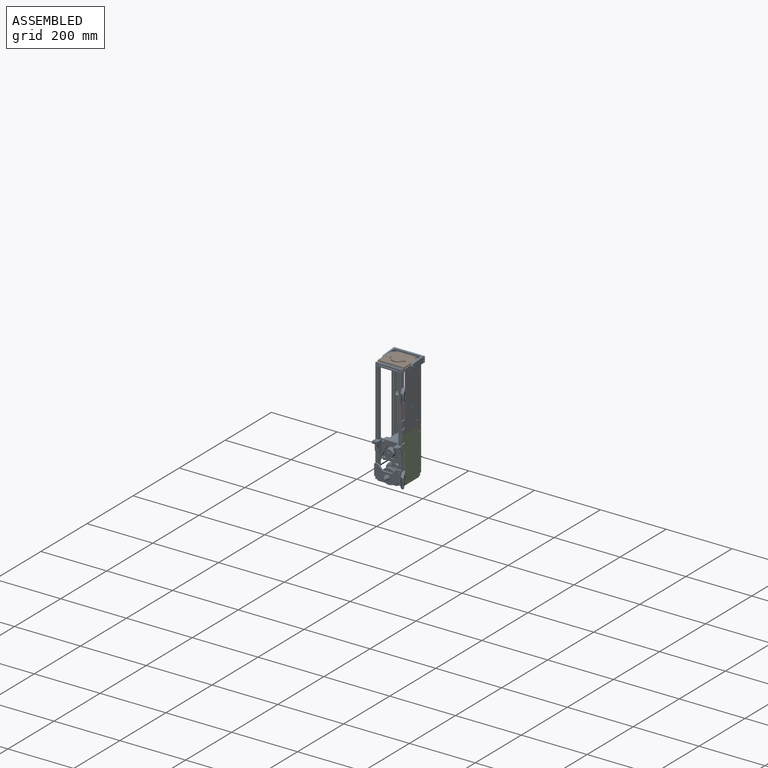
[diagram: assembled view]
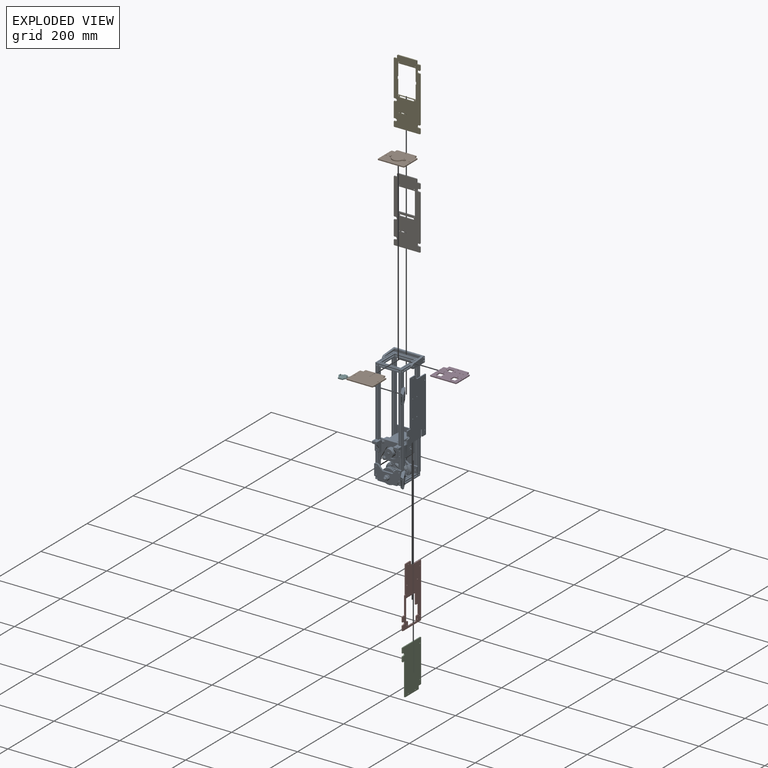
[diagram: exploded view]
GUIDED TOUR — FREECAD ASSEMBLY "colonne-moteur"

This assembly has 10 components, labeled P0..P9 below (a component is one placed body or linked part; the same part can appear more than once), held together by 0 modeled joints plus 35 derived contact edges. A joint is a constraint between two components; its type names the relative motion it leaves free:
  CONTACT — a derived adjacency edge — the two components touch in the source model (clearance under 2% of the assembly's diagonal); it is measured from the geometry, not a modeled constraint.
Axis/direction vectors are unit vectors and 'through' points are millimeter coordinates, both in the assembly's world frame.

MATES
  1. CONTACT "contact_0_1": P0 <-> P1, contact direction (0.000, 0.000, 1.000) through (40.00, 7.00, 319.50) mm (derived from contact, not a modeled constraint)
  2. CONTACT "contact_0_2": P0 <-> P2, contact direction (0.000, 0.000, -1.000) through (40.00, -4.00, 140.00) mm (derived from contact, not a modeled constraint)
  3. CONTACT "contact_0_3": P0 <-> P3, contact direction (0.000, 0.000, 1.000) through (40.00, 7.00, 319.50) mm (derived from contact, not a modeled constraint)
  4. CONTACT "contact_0_4": P0 <-> P4, contact direction (-0.695, 0.712, -0.104) through (40.00, 74.50, 308.00) mm (derived from contact, not a modeled constraint)
  5. CONTACT "contact_0_6": P0 <-> P6, contact direction (-0.695, 0.712, -0.104) through (40.00, 74.50, 308.00) mm (derived from contact, not a modeled constraint)
  6. CONTACT "contact_0_7": P0 <-> P7, contact direction (1.000, 0.000, 0.000) through (40.00, -4.00, 156.00) mm (derived from contact, not a modeled constraint)
  7. CONTACT "contact_0_8": P0 <-> P8, contact direction (0.000, 0.000, -1.000) through (43.00, 37.58, 307.65) mm (derived from contact, not a modeled constraint)
  8. CONTACT "contact_0_9": P0 <-> P9, contact direction (0.000, 0.000, 1.000) through (40.00, 7.00, 319.50) mm (derived from contact, not a modeled constraint)
  9. CONTACT "contact_1_3": P1 <-> P3, contact direction (0.000, 0.000, 1.000) through (-39.00, 5.00, 320.00) mm (derived from contact, not a modeled constraint)
  10. CONTACT "contact_1_4": P1 <-> P4, contact direction (-1.000, 0.000, 0.000) through (-29.00, 75.00, 320.00) mm (derived from contact, not a modeled constraint)
  11. CONTACT "contact_1_6": P1 <-> P6, contact direction (-1.000, 0.000, 0.000) through (-29.00, 75.00, 320.00) mm (derived from contact, not a modeled constraint)
  12. CONTACT "contact_1_7": P1 <-> P7, contact direction (0.000, 0.000, -1.000) through (40.00, 7.00, 319.50) mm (derived from contact, not a modeled constraint)
  13. CONTACT "contact_1_8": P1 <-> P8, contact direction (0.000, 0.000, -1.000) through (-30.00, 72.88, 318.72) mm (derived from contact, not a modeled constraint)
  14. CONTACT "contact_1_9": P1 <-> P9, contact direction (0.000, 0.000, 1.000) through (-39.00, 5.00, 320.00) mm (derived from contact, not a modeled constraint)
  15. CONTACT "contact_2_4": P2 <-> P4, contact direction (0.000, 0.000, 1.000) through (39.50, 75.00, 137.50) mm (derived from contact, not a modeled constraint)
  16. CONTACT "contact_2_6": P2 <-> P6, contact direction (0.000, 0.000, 1.000) through (39.50, 75.00, 137.50) mm (derived from contact, not a modeled constraint)
  17. CONTACT "contact_2_7": P2 <-> P7, contact direction (0.000, 0.000, 1.000) through (43.00, 74.00, 140.00) mm (derived from contact, not a modeled constraint)
  18. CONTACT "contact_2_8": P2 <-> P8, contact direction (-1.000, 0.000, 0.000) through (40.00, 72.75, 10.00) mm (derived from contact, not a modeled constraint)
  19. CONTACT "contact_3_4": P3 <-> P4, contact direction (-1.000, 0.000, 0.000) through (-29.00, 75.00, 320.00) mm (derived from contact, not a modeled constraint)
  20. CONTACT "contact_3_6": P3 <-> P6, contact direction (-1.000, 0.000, 0.000) through (-29.00, 75.00, 320.00) mm (derived from contact, not a modeled constraint)
  21. CONTACT "contact_3_7": P3 <-> P7, contact direction (0.000, 0.000, -1.000) through (40.00, 7.00, 319.50) mm (derived from contact, not a modeled constraint)
  22. CONTACT "contact_3_8": P3 <-> P8, contact direction (0.000, 0.000, -1.000) through (-30.00, 72.88, 318.72) mm (derived from contact, not a modeled constraint)
  23. CONTACT "contact_3_9": P3 <-> P9, contact direction (0.000, 0.000, 1.000) through (-39.00, 5.00, 320.00) mm (derived from contact, not a modeled constraint)
  24. CONTACT "contact_4_5": P4 <-> P5, contact direction (-0.707, -0.702, -0.082) through (-28.45, 74.80, 211.45) mm (derived from contact, not a modeled constraint)
  25. CONTACT "contact_4_6": P4 <-> P6, contact direction (0.000, 1.000, 0.000) through (30.00, 75.00, 310.00) mm (derived from contact, not a modeled constraint)
  26. CONTACT "contact_4_7": P4 <-> P7, contact direction (0.695, -0.712, 0.104) through (40.00, 74.50, 308.00) mm (derived from contact, not a modeled constraint)
  27. CONTACT "contact_4_8": P4 <-> P8, contact direction (0.000, 0.000, -1.000) through (-30.00, 73.38, 318.22) mm (derived from contact, not a modeled constraint)
  28. CONTACT "contact_4_9": P4 <-> P9, contact direction (1.000, 0.000, 0.000) through (-29.00, 75.00, 320.00) mm (derived from contact, not a modeled constraint)
  29. CONTACT "contact_5_6": P5 <-> P6, contact direction (0.707, 0.702, 0.082) through (-21.74, 75.00, 211.51) mm (derived from contact, not a modeled constraint)
  30. CONTACT "contact_6_7": P6 <-> P7, contact direction (0.695, -0.712, 0.104) through (40.00, 74.50, 308.00) mm (derived from contact, not a modeled constraint)
  31. CONTACT "contact_6_8": P6 <-> P8, contact direction (0.000, 0.000, -1.000) through (-30.00, 73.38, 318.22) mm (derived from contact, not a modeled constraint)
  32. CONTACT "contact_6_9": P6 <-> P9, contact direction (1.000, 0.000, 0.000) through (-29.00, 75.00, 320.00) mm (derived from contact, not a modeled constraint)
  33. CONTACT "contact_7_8": P7 <-> P8, contact direction (0.000, 0.000, -1.000) through (43.00, 37.58, 307.65) mm (derived from contact, not a modeled constraint)
  34. CONTACT "contact_7_9": P7 <-> P9, contact direction (0.000, 0.000, 1.000) through (40.00, 7.00, 319.50) mm (derived from contact, not a modeled constraint)
  35. CONTACT "contact_8_9": P8 <-> P9, contact direction (0.000, 0.000, 1.000) through (-30.00, 72.88, 318.72) mm (derived from contact, not a modeled constraint)

ASSEMBLY ORDER
  1. P8 — the base component [order verified]
  2. P2 [order verified]
  3. P4 [order verified]
  4. P6 [order verified]
  5. P7 [order verified]
  6. P0 [order verified]
  7. P3 [order verified]
  8. P1 [order verified]
  9. P5 [order verified]
  10. P9 [order verified]
Order-tag legend:
  [order verified] — this step's position reverses a verified removal order: the component was checked to insert without passing through the ones already placed.

Of the 10 components, 10 carry a construction recipe — the FreeCAD feature program (sketches with constraints, then the solid features that consume them) that regenerates the part from scratch, quoted from this document or from the linked companion document it references; the rest are supplied as boundary geometry only. The tour below walks the components in assembly order: each is shown spotlighted twice — in the assembled view, then in the exploded view, where a leader line traces a displaced component back to its assembled socket (components that stay in place when exploded have no leader line; saturated green if recipe-attached, orange if geometry-only; every other component desaturated gray) — followed by its recipe or geometry summary and the mates that hold it.
NOTE — this tour is split across 2 documents so each fits a 32k-token context. This is document 1: the component sections continue in the remaining 1 document, each repeating the header above.
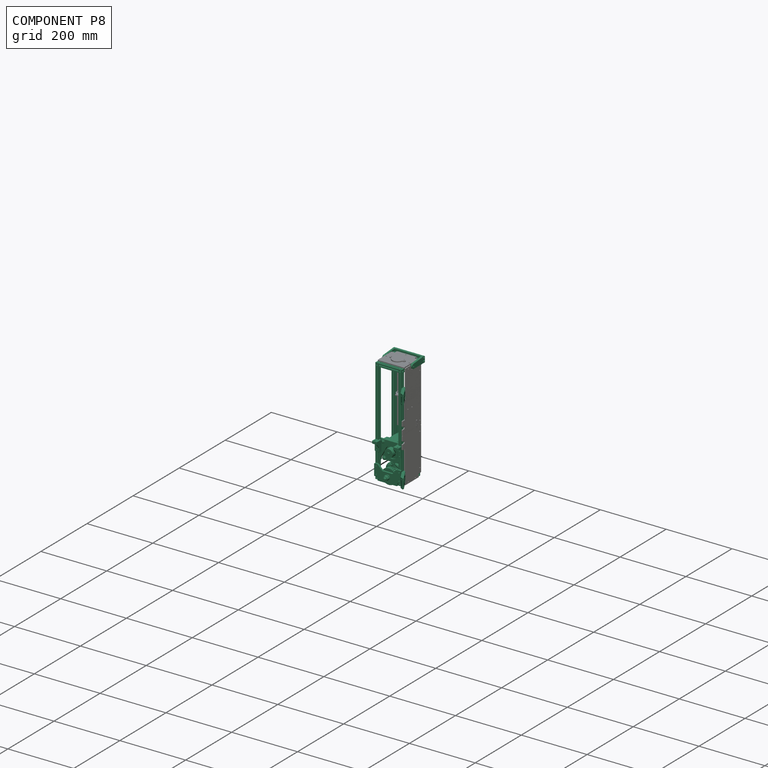
[diagram: component P8 — assembled]
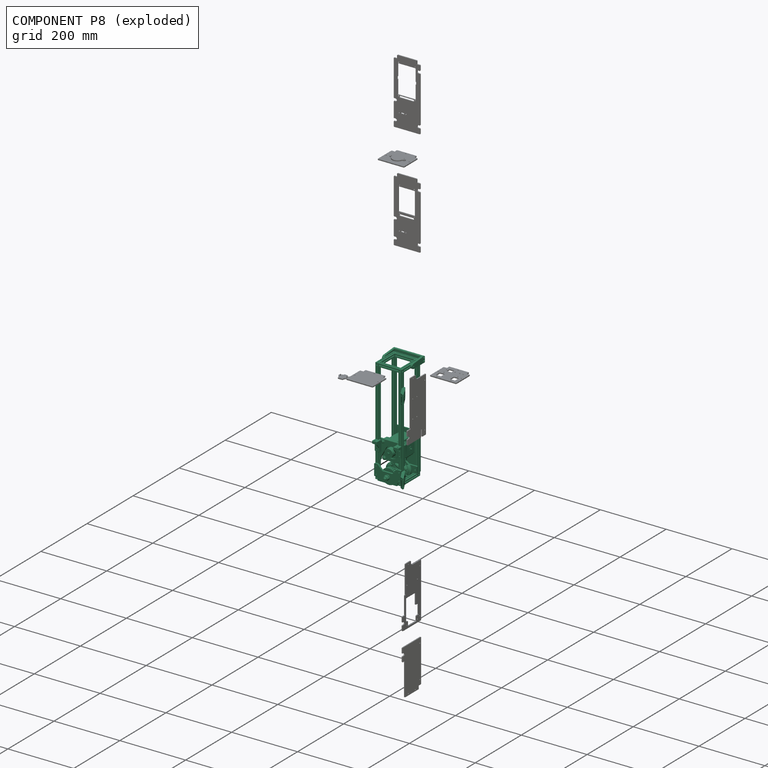
[diagram: component P8 — exploded]
COMPONENT P8 — recipe-attached ("ColonneMoteur", modeled in this document).
Held by: resting contact with P0 (derived edge); resting contact with P1 (derived edge); resting contact with P2 (derived edge); resting contact with P3 (derived edge); resting contact with P4 (derived edge); resting contact with P6 (derived edge); resting contact with P7 (derived edge); resting contact with P9 (derived edge).
Construction recipe (the document's own serialized feature program — sketch geometry with constraints, then the solid features built on it; lengths are millimeters unless a unit is written):

FEATURE [Part::SubShapeBinder] Import  label="Import(Chamfer001)"
  BindCopyOnChange = 0
  BindMode = 0
  ClaimChildren = false
  Context = -> <external ../robots_2023.FCStd>#Part001 [Link001.Group001.Link003.Body088.Import.]
  EdgeTolerance = 1e-06
  FillStyle = 0
  Fuse = false
  InvalidShape = false
  MakeFace = false
  MergeEdges = true
  OffsetFill = false
  OffsetIntersection = false
  OffsetJoinType = 0
  OffsetOpenResult = false
  Outline = false
  PartialLoad = false
  Relative = true
  SplitEdges = false
  Support = -> [Part[Body014.Chamfer001.]]
  TightBound = false
  TreeRank = 430
  ValidateShape = true
  _Version = 8
FEATURE [Sketcher::SketchObject] Sketch191
  ArcFitTolerance = 1e-06
  AttachmentSupport = -> [Import]
  ExternalBSplineMaxDegree = 5
  ExternalBSplineTolerance = 0.0001
  FullyConstrained = true
  InternalTolerance = 1e-06
  InvalidShape = false
  MakeInternals = true
  MapMode = 5
  Placement = pos=(0,65,1.44e-14) rot=(0,0.707107,0.707107;3.14159rad)
  Support = -> [Import]
  TreeRank = 431
  ValidateShape = true
  sketch-geometry (6):
    g0: LineSegment StartX=30 StartY=10 StartZ=0 EndX=15 EndY=10 EndZ=0
    g1: LineSegment StartX=15 StartY=10 StartZ=0 EndX=15 EndY=40 EndZ=0
    g2: LineSegment StartX=15 StartY=40 StartZ=0 EndX=30 EndY=40 EndZ=0
    g3: LineSegment StartX=30 StartY=40 StartZ=0 EndX=30 EndY=10 EndZ=0
    g4: Circle CenterX=22.5 CenterY=14 CenterZ=0 NormalX=0 NormalY=0 NormalZ=1 AngleXU=0 Radius=2.1
    g5: LineSegment [constr] StartX=22.5 StartY=10 StartZ=0 EndX=22.5 EndY=40 EndZ=0
  constraints (18):
    c: Coincident(g0,g1)
    c: Coincident(g1,g2)
    c: Coincident(g2,g3)
    c: Coincident(g3,g0)
    c: Horizontal(g0)
    c: Horizontal(g2)
    c: Vertical(g1)
    c: Vertical(g3)
    c: DistanceX(g2,g2) = 15
    c: DistanceY(g1,g1) = 30
    c: DistanceX(g-1,g0) = 30
    c: DistanceY(g-1,g0) = 10
    c: PointOnObject(g5,g0)
    c: Vertical(g5)
    c: Symmetric(g1,g2,g5)
    c: PointOnObject(g4,g5)
    c: Diameter(g4) = 4.2
    c: DistanceY(g5,g4) = 4
FEATURE [PartDesign::Pad] Pad101
  AddSubType = 0
  AlongSketchNormal = false
  AutoTaperInnerAngle = true
  CheckUpToFaceLimits = true
  ClaimChildren = false
  Direction = (0,1,2e-16)
  Fit = 0
  FitJoin = 0
  InnerFit = 0
  InnerFitJoin = 0
  InvalidShape = false
  Length = 10
  Length2 = 100
  Linearize = true
  NewSolid = false
  Profile = -> Sketch191
  Refine = true
  Suppress = false
  TaperInnerAngle = 0
  TaperInnerAngleRev = 0
  TreeRank = 432
  Type = 0
  ValidateShape = true
  _ProfileBasedVersion = 1
FEATURE [Sketcher::SketchObject] Sketch192
  ArcFitTolerance = 1e-06
  AttachmentSupport = -> [Pad101]
  ExternalBSplineMaxDegree = 5
  ExternalBSplineTolerance = 0.0001
  ExternalGeometry = -> [Pad101]
  FullyConstrained = true
  InternalTolerance = 1e-06
  InvalidShape = false
  MakeInternals = true
  MapMode = 5
  Placement = pos=(0,75,3.62e-14) rot=(0,0.707107,0.707107;3.14159rad)
  Support = -> [Pad101]
  TreeRank = 433
  ValidateShape = true
  sketch-geometry (4):
    g0: LineSegment StartX=15 StartY=40 StartZ=0 EndX=30 EndY=40 EndZ=0
    g1: LineSegment StartX=30 StartY=40 StartZ=0 EndX=30 EndY=18 EndZ=0
    g2: LineSegment StartX=30 StartY=18 StartZ=0 EndX=15 EndY=18 EndZ=0
    g3: LineSegment StartX=15 StartY=18 StartZ=0 EndX=15 EndY=40 EndZ=0
  constraints (10):
    c: Coincident(g0,g1)
    c: Coincident(g1,g2)
    c: Coincident(g2,g3)
    c: Coincident(g3,g0)
    c: Horizontal(g2)
    c: Vertical(g1)
    c: Vertical(g3)
    c: Coincident(g0,g-3)
    c: Coincident(g0,g-3)
    c: DistanceY(g-4,g2) = 8
FEATURE [PartDesign::Pocket] Pocket033
  AddSubType = 1
  AutoTaperInnerAngle = true
  BaseFeature = -> Pad101
  CheckUpToFaceLimits = true
  ClaimChildren = false
  Fit = 0
  FitJoin = 0
  InnerFit = 0
  InnerFitJoin = 0
  InvalidShape = false
  Length = 8
  Length2 = 100
  Linearize = true
  NewSolid = false
  Profile = -> Sketch192
  Refine = true
  Suppress = false
  TaperInnerAngle = 0
  TaperInnerAngleRev = 0
  TreeRank = 434
  Type = 0
  ValidateShape = true
  _ProfileBasedVersion = 1
  _Version = 1
FEATURE [Sketcher::SketchObject] Sketch193
  ArcFitTolerance = 1e-06
  AttachmentSupport = -> [Pocket033]
  ExternalBSplineMaxDegree = 5
  ExternalBSplineTolerance = 0.0001
  ExternalGeometry = -> [Pocket033]
  FullyConstrained = true
  InternalTolerance = 1e-06
  InvalidShape = false
  MakeInternals = true
  MapMode = 5
  Placement = pos=(0,67,0) rot=(0,0.707107,0.707107;3.14159rad)
  Support = -> [Pocket033]
  TreeRank = 435
  ValidateShape = true
  sketch-geometry (4):
    g0: LineSegment StartX=15 StartY=18 StartZ=0 EndX=30 EndY=18 EndZ=0
    g1: LineSegment StartX=30 StartY=18 StartZ=0 EndX=30 EndY=26 EndZ=0
    g2: LineSegment StartX=30 StartY=26 StartZ=0 EndX=15 EndY=26 EndZ=0
    g3: LineSegment StartX=15 StartY=26 StartZ=0 EndX=15 EndY=18 EndZ=0
  constraints (10):
    c: Coincident(g0,g1)
    c: Coincident(g1,g2)
    c: Coincident(g2,g3)
    c: Coincident(g3,g0)
    c: Horizontal(g2)
    c: Vertical(g1)
    c: Vertical(g3)
    c: Coincident(g0,g-3)
    c: Coincident(g0,g-3)
    c: DistanceY(g3,g3) = 8
FEATURE [PartDesign::Pad] Pad102
  AddSubType = 0
  AlongSketchNormal = false
  AutoTaperInnerAngle = true
  BaseFeature = -> Pocket033
  CheckUpToFaceLimits = true
  ClaimChildren = false
  Direction = (0,1,-2e-16)
  Fit = 0
  FitJoin = 0
  InnerFit = 0
  InnerFitJoin = 0
  InvalidShape = false
  Length = 1.5
  Length2 = 100
  Linearize = true
  NewSolid = false
  Profile = -> Sketch193
  Refine = true
  Suppress = false
  TaperInnerAngle = 0
  TaperInnerAngleRev = 0
  TreeRank = 436
  Type = 0
  ValidateShape = true
  _ProfileBasedVersion = 1
FEATURE [Sketcher::SketchObject] Sketch194
  ArcFitTolerance = 1e-06
  AttachmentSupport = -> [Pad102]
  ExternalBSplineMaxDegree = 5
  ExternalBSplineTolerance = 0.0001
  ExternalGeometry = -> [Pad102]
  FullyConstrained = true
  InternalTolerance = 1e-06
  InvalidShape = false
  MakeInternals = true
  MapMode = 5
  Placement = pos=(0,-8e-15,18) rot=(0,0,1;0rad)
  Support = -> [Pad102]
  TreeRank = 437
  ValidateShape = true
  sketch-geometry (4):
    g0: LineSegment [constr] StartX=0 StartY=75 StartZ=0 EndX=-22.5 EndY=75 EndZ=0
    g1: LineSegment [constr] StartX=-22.5 StartY=75 StartZ=0 EndX=-1.1511e-12 EndY=-45 EndZ=0
    g2: LineSegment StartX=-30 StartY=68.5 StartZ=0 EndX=-15 EndY=71.3125 EndZ=0
    g3: LineSegment StartX=-15 StartY=71.3125 StartZ=0 EndX=-15 EndY=68.5 EndZ=0
  constraints (11):
    c: PointOnObject(g0,g-2)
    c: Horizontal(g0)
    c: Coincident(g1,g0)
    c: PointOnObject(g1,g-2)
    c: DistanceY(g1,g0) = 120
    c: Symmetric(g-3,g-3,g0)
    c: Coincident(g2,g-4)
    c: Coincident(g3,g2)
    c: Coincident(g3,g-4)
    c: Vertical(g3)
    c: Perpendicular(g1,g2)
FEATURE [PartDesign::Pad] Pad103
  AddSubType = 0
  AlongSketchNormal = false
  AutoTaperInnerAngle = true
  BaseFeature = -> Pad102
  CheckUpToFaceLimits = true
  ClaimChildren = false
  Direction = (0,-4e-16,1)
  Fit = 0
  FitJoin = 0
  InnerFit = 0
  InnerFitJoin = 0
  InvalidShape = false
  Length = 10
  Length2 = 100
  Linearize = true
  NewSolid = false
  Profile = -> Sketch194
  Refine = true
  Suppress = false
  TaperInnerAngle = 0
  TaperInnerAngleRev = 0
  TreeRank = 438
  Type = 3
  UpToFace = -> Pad102 [Face9]
  ValidateShape = true
  _ProfileBasedVersion = 1
FEATURE [Sketcher::SketchObject] Sketch195
  ArcFitTolerance = 1e-06
  AttachmentSupport = -> [Pad103]
  ExternalBSplineMaxDegree = 5
  ExternalBSplineTolerance = 0.0001
  ExternalGeometry = -> [Pad103]
  FullyConstrained = true
  InternalTolerance = 1e-06
  InvalidShape = false
  MakeInternals = true
  MapMode = 5
  Placement = pos=(-13.4264,71.6075,3.18e-14) rot=(-0.065577,0.705585,0.705585;3.27256rad)
  Support = -> [Pad103]
  TreeRank = 439
  ValidateShape = true
  sketch-geometry (2):
    g0: LineSegment [constr] StartX=1.60101 StartY=26 StartZ=0 EndX=16.8624 EndY=18 EndZ=0
    g1: Circle CenterX=9.2317 CenterY=22 CenterZ=0 NormalX=0 NormalY=0 NormalZ=1 AngleXU=0 Radius=1.2
  constraints (4):
    c: Coincident(g0,g-3)
    c: Coincident(g0,g-4)
    c: Diameter(g1) = 2.4
    c: Symmetric(g-3,g-4,g1)
FEATURE [PartDesign::Pocket] Pocket034
  AddSubType = 1
  AutoTaperInnerAngle = true
  BaseFeature = -> Pad103
  CheckUpToFaceLimits = true
  ClaimChildren = false
  Fit = 0
  FitJoin = 0
  InnerFit = 0
  InnerFitJoin = 0
  InvalidShape = false
  Length = 5
  Length2 = 100
  Linearize = true
  NewSolid = false
  Profile = -> Sketch195
  Refine = true
  Suppress = false
  TaperInnerAngle = 0
  TaperInnerAngleRev = 0
  TreeRank = 440
  Type = 1
  ValidateShape = true
  _ProfileBasedVersion = 1
  _Version = 1
FEATURE [Sketcher::SketchObject] Sketch196
  ArcFitTolerance = 1e-06
  AttachmentOffset = pos=(0,0,-3) rot=(0,0,1;0rad)
  AttachmentSupport = -> [Pocket034]
  ExternalBSplineMaxDegree = 5
  ExternalBSplineTolerance = 0.0001
  ExternalGeometry = -> [Pocket034]
  FullyConstrained = true
  InternalTolerance = 1e-06
  InvalidShape = false
  MakeInternals = true
  MapMode = 5
  Placement = pos=(-12.8735,68.6589,3e-14) rot=(-0.065577,0.705585,0.705585;3.27256rad)
  Support = -> [Pocket034]
  TreeRank = 441
  ValidateShape = true
  sketch-geometry (7):
    g0: LineSegment StartX=6.63363 StartY=22 StartZ=0 EndX=7.93267 EndY=19.75 EndZ=0
    g1: LineSegment StartX=7.93267 StartY=19.75 StartZ=0 EndX=10.5307 EndY=19.75 EndZ=0
    g2: LineSegment StartX=10.5307 StartY=19.75 StartZ=0 EndX=11.8298 EndY=22 EndZ=0
    g3: LineSegment StartX=11.8298 StartY=22 StartZ=0 EndX=10.5307 EndY=24.25 EndZ=0
    g4: LineSegment StartX=10.5307 StartY=24.25 StartZ=0 EndX=7.93267 EndY=24.25 EndZ=0
    g5: LineSegment StartX=7.93267 StartY=24.25 StartZ=0 EndX=6.63363 EndY=22 EndZ=0
    g6: Circle [constr] CenterX=9.2317 CenterY=22 CenterZ=0 NormalX=0 NormalY=0 NormalZ=1 AngleXU=0 Radius=2.59808
  constraints (16):
    c: Coincident(g0,g1)
    c: Coincident(g1,g2)
    c: Coincident(g2,g3)
    c: Coincident(g3,g4)
    c: Coincident(g4,g5)
    c: Coincident(g5,g0)
    c: Equal(g0, g1-g5) x5
    c: PointOnObject(g0,g6)
    c: PointOnObject(g1,g6)
    c: PointOnObject(g2,g6)
    c: PointOnObject(g3,g6)
    c: PointOnObject(g4,g6)
    c: PointOnObject(g5,g6)
    c: Coincident(g6,g-3)
    c: Horizontal(g4)
    c: DistanceY(g1,g3) = 4.5
FEATURE [PartDesign::Pocket] Pocket035
  AddSubType = 1
  AutoTaperInnerAngle = true
  BaseFeature = -> Pocket034
  CheckUpToFaceLimits = true
  ClaimChildren = false
  Fit = 0
  FitJoin = 0
  InnerFit = 0
  InnerFitJoin = 0
  InvalidShape = false
  Length = 5
  Length2 = 100
  Linearize = true
  NewSolid = false
  Profile = -> Sketch196
  Refine = true
  Suppress = false
  TaperInnerAngle = 0
  TaperInnerAngleRev = 0
  TreeRank = 442
  Type = 0
  ValidateShape = true
  _ProfileBasedVersion = 1
  _Version = 1
FEATURE [PartDesign::Chamfer] Chamfer066
  AddSubType = 0
  Angle = 45
  Base = -> Pocket035 [Edge2,Edge1,Edge18,Edge6]
  BaseFeature = -> Pocket035
  ChamferType = 0
  FlipDirection = false
  InvalidShape = false
  NewSolid = false
  Refine = true
  Size = 2
  Size2 = 1
  SupportTransform = false
  Suppress = false
  TreeRank = 443
  ValidateShape = true
FEATURE [PartDesign::Chamfer] Chamfer067
  AddSubType = 0
  Angle = 45
  Base = -> Chamfer066 [Edge26,Edge58]
  BaseFeature = -> Chamfer066
  ChamferType = 0
  FlipDirection = false
  InvalidShape = false
  NewSolid = false
  Refine = true
  Size = 0.5
  Size2 = 1
  SupportTransform = false
  Suppress = false
  TreeRank = 444
  ValidateShape = true
FEATURE [PartDesign::Chamfer] Chamfer068
  AddSubType = 0
  Angle = 45
  Base = -> Chamfer067 [Edge27,Edge20,Edge26,Edge21]
  BaseFeature = -> Chamfer067
  ChamferType = 0
  FlipDirection = false
  InvalidShape = false
  NewSolid = false
  Refine = true
  Size = 1
  Size2 = 1
  SupportTransform = false
  Suppress = false
  TreeRank = 445
  ValidateShape = true
FEATURE [PartDesign::Chamfer] Chamfer069
  AddSubType = 0
  Angle = 45
  Base = -> Chamfer068 [Face12]
  BaseFeature = -> Chamfer068
  ChamferType = 0
  FlipDirection = false
  InvalidShape = false
  NewSolid = false
  Refine = true
  Size = 0.4
  Size2 = 1
  SupportTransform = false
  Suppress = false
  TreeRank = 446
  ValidateShape = true
FEATURE [PartDesign::Body] Body088  label="SupportPololuPOL4079"
  AutoGroupSolids = false
  ClaimAllChildren = false
  ExportMode = 0
  Group = -> [Import,Sketch191,Pad101,Sketch192,Pocket033,Sketch193,Pad102,Sketch194,Pad103,Sketch195,Pocket034,Sketch196,Pocket035,Chamfer066,Chamfer067,Chamfer068,Chamfer069]
  InvalidShape = false
  Origin = -> Origin176
  SingleSolid = true
  Tip = -> Chamfer069
  TreeRank = 429
  ValidateShape = true
  _ExportChildren = -> [Import,Pad101,Pocket033,Pad102,Pad103,Pocket034,Pocket035,Chamfer066,Chamfer067,Chamfer068,Chamfer069]
  _GroupVersion = 1
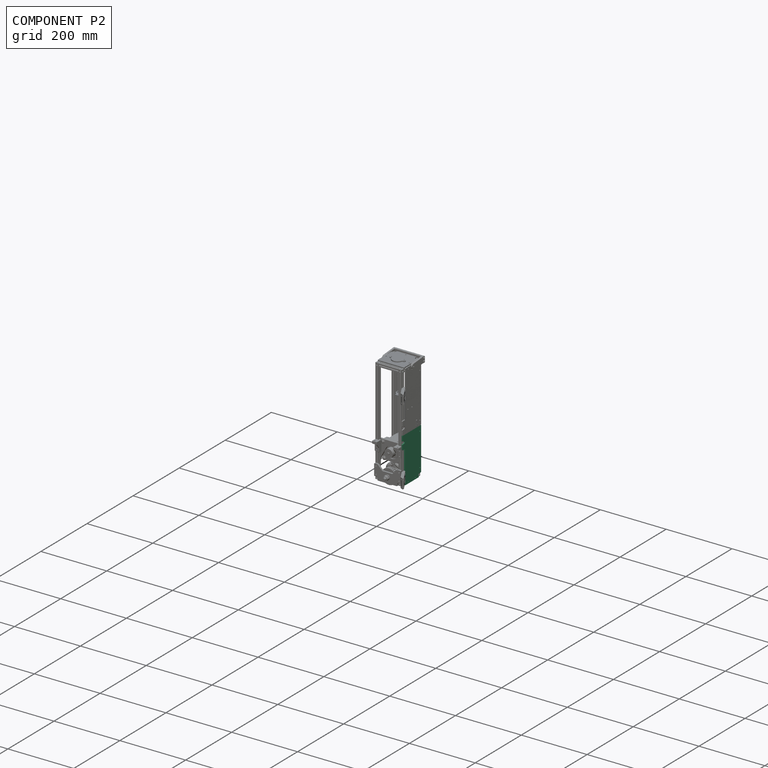
[diagram: component P2 — assembled]
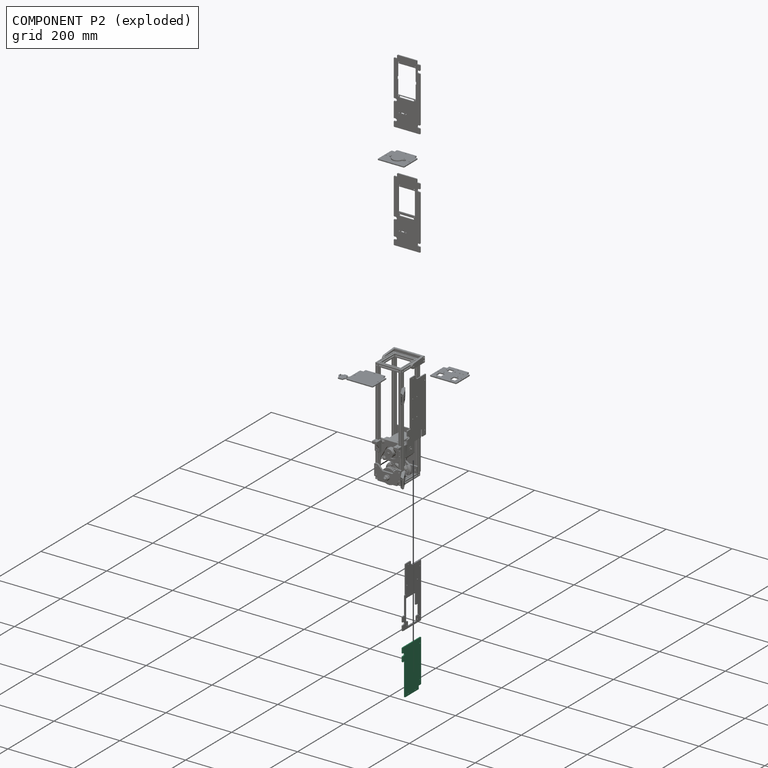
[diagram: component P2 — exploded]
COMPONENT P2 — recipe-attached ("CarterInfAscenseur", modeled in this document).
Held by: resting contact with P0 (derived edge); resting contact with P4 (derived edge); resting contact with P6 (derived edge); resting contact with P7 (derived edge); resting contact with P8 (derived edge).
Construction recipe (the document's own serialized feature program — sketch geometry with constraints, then the solid features built on it; lengths are millimeters unless a unit is written):

FEATURE [Sketcher::SketchObject] Sketch153
  ArcFitTolerance = 0
  AttachmentOffset = pos=(0,0,40) rot=(0,0,1;0rad)
  AttachmentSupport = -> [YZ_Plane091]
  ExternalBSplineMaxDegree = 0
  ExternalBSplineTolerance = 0
  FullyConstrained = true
  InternalTolerance = 1e-06
  InvalidShape = false
  MakeInternals = false
  MapMode = 5
  Placement = pos=(40,-8.9e-15,8.9e-15) rot=(0.57735,0.57735,0.57735;2.0944rad)
  Support = -> [YZ_Plane091]
  TreeRank = 26
  ValidateShape = true
  sketch-geometry (16):
    g0: LineSegment StartX=-5 StartY=140 StartZ=0 EndX=75 EndY=140 EndZ=0
    g1: LineSegment StartX=75 StartY=140 StartZ=0 EndX=75 EndY=10 EndZ=0
    g2: LineSegment StartX=75 StartY=10 StartZ=0 EndX=65 EndY=10 EndZ=0
    g3: LineSegment StartX=65 StartY=10 StartZ=0 EndX=65 EndY=5.15e-14 EndZ=0
    g4: LineSegment StartX=65 StartY=5.19e-14 StartZ=0 EndX=5 EndY=0 EndZ=0
    g5: LineSegment StartX=5 StartY=0 StartZ=0 EndX=5 EndY=100 EndZ=0
    g6: LineSegment StartX=5 StartY=100 StartZ=0 EndX=-5 EndY=100 EndZ=0
    g7: LineSegment StartX=-5 StartY=100 StartZ=0 EndX=-5 EndY=116 EndZ=0
    g8: Circle CenterX=20 CenterY=5 CenterZ=0 NormalX=0 NormalY=0 NormalZ=1 AngleXU=0 Radius=1.6
    g9: Circle CenterX=50 CenterY=5 CenterZ=0 NormalX=0 NormalY=0 NormalZ=1 AngleXU=0 Radius=1.6
    g10: Circle CenterX=70 CenterY=25 CenterZ=0 NormalX=0 NormalY=0 NormalZ=1 AngleXU=0 Radius=1.6
    g11: Circle CenterX=70 CenterY=125 CenterZ=0 NormalX=0 NormalY=0 NormalZ=1 AngleXU=0 Radius=1.6
    g12: ArcOfCircle CenterX=-1.37292e-11 CenterY=120 CenterZ=0 NormalX=0 NormalY=0 NormalZ=1 AngleXU=0 Radius=4 StartAngle=4.71239 EndAngle=7.85398
    g13: LineSegment StartX=-5 StartY=116 StartZ=0 EndX=-4.11307e-11 EndY=116 EndZ=0
    g14: LineSegment StartX=-3.5766e-12 StartY=124 StartZ=0 EndX=-5 EndY=124 EndZ=0
    g15: LineSegment StartX=-5 StartY=124 StartZ=0 EndX=-5 EndY=140 EndZ=0
  constraints (47):
    c: Horizontal(g0)
    c: Coincident(g0,g1)
    c: Vertical(g1)
    c: Coincident(g1,g2)
    c: Coincident(g2,g3)
    c: PointOnObject(g3,g-1)
    c: Vertical(g3)
    c: Coincident(g3,g4)
    c: PointOnObject(g4,g-1)
    c: Coincident(g4,g5)
    c: Vertical(g5)
    c: Coincident(g5,g6)
    c: Horizontal(g6)
    c: Coincident(g6,g7)
    c: Coincident(g15,g0)
    c: Vertical(g7)
    c: DistanceY(g6) = 100
    c: DistanceY(g0) = 140
    c: DistanceX(g6,g6) = 10
    c: DistanceX(g5) = 5
    c: DistanceX(g0,g0) = 80
    c: Equal(g2,g3)
    c: Horizontal(g2)
    c: DistanceX(g2,g2) = 10
    c: Equal(g9,g8)
    c: Equal(g8,g10)
    c: Equal(g10,g11)
    c: Diameter(g11) = 3.2
    c: Vertical(g11,g10)
    c: Horizontal(g8,g9)
    c: DistanceX(g9,g3) = 15
    c: DistanceX(g4,g8) = 15
    c: DistanceY(g8) = 5
    c: DistanceX(g10,g1) = 5
    c: DistanceY(g1,g10) = 15
    c: DistanceY(g11,g0) = 15
    c: Tangent(g13,g12) = -1.5708
    c: Tangent(g12,g14) = -1.5708
    c: Horizontal(g14)
    c: Radius(g12) = 4
    c: Equal(g15,g7)
    c: Vertical(g15)
    c: Coincident(g14,g15)
    c: PointOnObject(g7,g15)
    c: DistanceX(g14,g14) = 5
    c: Coincident(g13,g7)
    c: Horizontal(g13)
FEATURE [PartDesign::Pad] Pad085
  AddSubType = 0
  AlongSketchNormal = false
  AutoTaperInnerAngle = false
  CheckUpToFaceLimits = true
  ClaimChildren = false
  Direction = (1,-2e-16,3e-16)
  Fit = 0
  FitJoin = 0
  InnerFit = 0
  InnerFitJoin = 0
  InvalidShape = false
  Length = 3
  Length2 = 100
  Linearize = true
  NewSolid = false
  Placement = pos=(0,0,0) rot=(0.57735,0.57735,0.57735;2.0944rad)
  Profile = -> Sketch153
  Refine = true
  Suppress = false
  TaperInnerAngle = 0
  TaperInnerAngleRev = 0
  TreeRank = 27
  Type = 0
  ValidateShape = true
  _ProfileBasedVersion = 1
FEATURE [PartDesign::Chamfer] Chamfer056
  AddSubType = 0
  Angle = 45
  Base = -> Pad085 [Edge1,Edge32,Edge23,Edge20,Edge2,Edge5,Edge11,Edge14]
  BaseFeature = -> Pad085
  ChamferType = 0
  FlipDirection = false
  InvalidShape = false
  NewSolid = false
  Placement = pos=(0,0,0) rot=(0.57735,0.57735,0.57735;2.0944rad)
  Refine = true
  Size = 1
  Size2 = 1
  SupportTransform = false
  Suppress = false
  TreeRank = 28
  ValidateShape = true
FEATURE [PartDesign::Body] Body073  label="CarterInfAscenseur"
  AutoGroupSolids = false
  ClaimAllChildren = false
  ExportMode = 0
  Group = -> [Sketch153,Pad085,Chamfer056]
  InvalidShape = false
  Origin = -> Origin158
  SingleSolid = true
  Tip = -> Chamfer056
  TreeRank = 25
  ValidateShape = true
  _ExportChildren = -> [Pad085,Chamfer056]
  _GroupVersion = 1
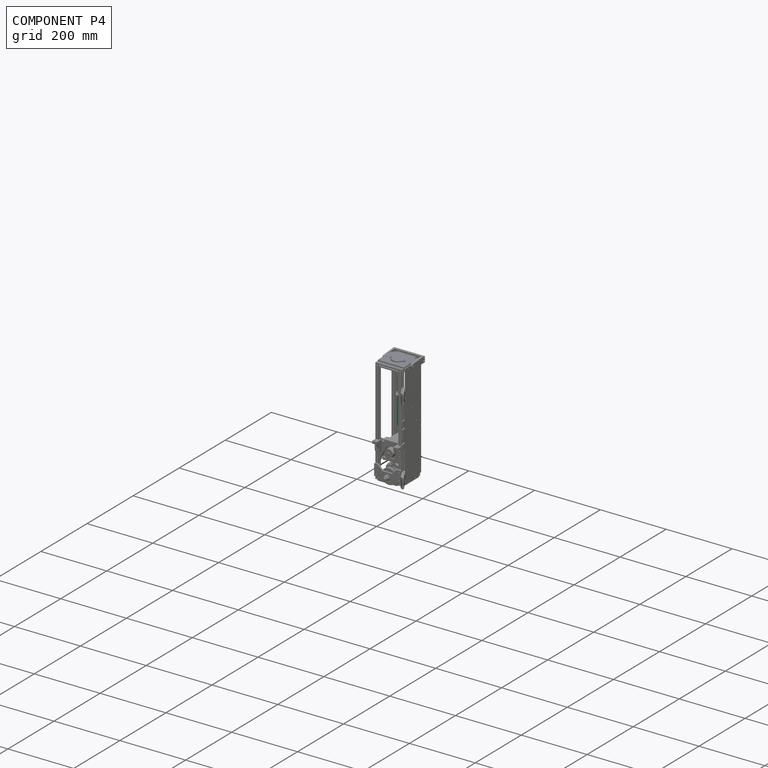
[diagram: component P4 — assembled]
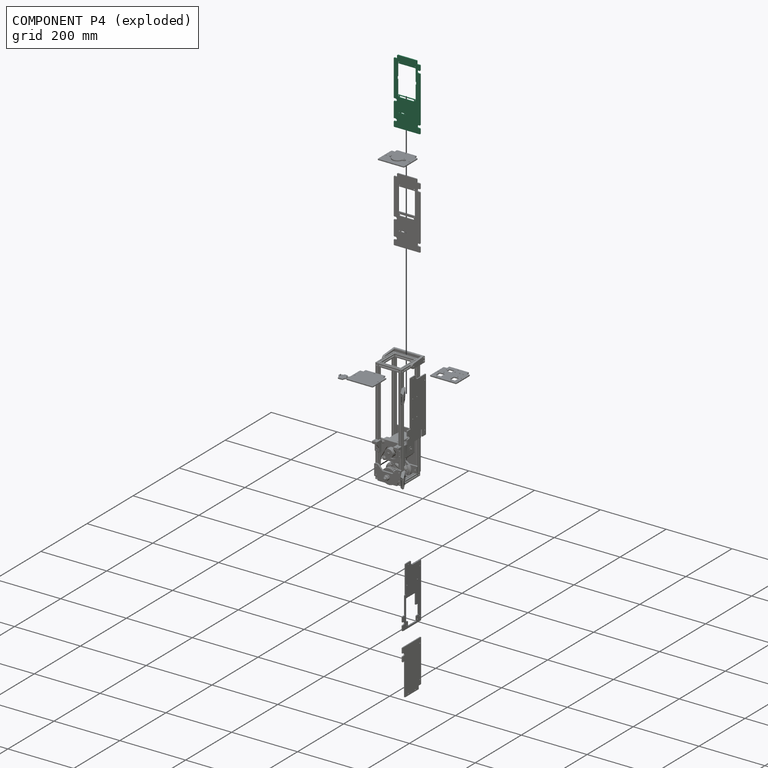
[diagram: component P4 — exploded]
COMPONENT P4 — recipe-attached ("CarterSide480*320", modeled in this document).
Held by: resting contact with P0 (derived edge); resting contact with P1 (derived edge); resting contact with P2 (derived edge); resting contact with P3 (derived edge); resting contact with P5 (derived edge); resting contact with P6 (derived edge); resting contact with P7 (derived edge); resting contact with P8 (derived edge); resting contact with P9 (derived edge).
Construction recipe (the document's own serialized feature program — sketch geometry with constraints, then the solid features built on it; lengths are millimeters unless a unit is written):

FEATURE [Sketcher::SketchObject] Sketch160
  ArcFitTolerance = 0
  AttachmentSupport = -> [XZ_Plane095]
  ExternalBSplineMaxDegree = 0
  ExternalBSplineTolerance = 0
  FullyConstrained = true
  InternalTolerance = 1e-06
  InvalidShape = false
  MakeInternals = false
  MapMode = 5
  Placement = pos=(0,0,0) rot=(0,0.707107,0.707107;3.14159rad)
  Support = -> [XZ_Plane095]
  TreeRank = 115
  ValidateShape = true
  sketch-geometry (8):
    g0: LineSegment StartX=-40 StartY=310 StartZ=0 EndX=-30 EndY=310 EndZ=0
    g1: LineSegment StartX=-30 StartY=310 StartZ=0 EndX=-30 EndY=320 EndZ=0
    g2: LineSegment StartX=-30 StartY=320 StartZ=0 EndX=30 EndY=320 EndZ=0
    g3: LineSegment StartX=30 StartY=320 StartZ=0 EndX=30 EndY=310 EndZ=0
    g4: LineSegment StartX=30 StartY=310 StartZ=0 EndX=40 EndY=310 EndZ=0
    g5: LineSegment StartX=40 StartY=310 StartZ=0 EndX=40 EndY=120 EndZ=0
    g6: LineSegment StartX=40 StartY=120 StartZ=0 EndX=-40 EndY=120 EndZ=0
    g7: LineSegment StartX=-40 StartY=120 StartZ=0 EndX=-40 EndY=310 EndZ=0
  constraints (23):
    c: Horizontal(g0)
    c: Coincident(g0,g1)
    c: Vertical(g1)
    c: Coincident(g1,g2)
    c: Coincident(g2,g3)
    c: Vertical(g3)
    c: Coincident(g3,g4)
    c: Horizontal(g4)
    c: Coincident(g4,g5)
    c: Vertical(g5)
    c: Coincident(g5,g6)
    c: Horizontal(g6)
    c: Coincident(g6,g7)
    c: Coincident(g7,g0)
    c: Vertical(g7)
    c: Equal(g0,g1)
    c: Equal(g1,g3)
    c: Equal(g3,g4)
    c: DistanceY(g1,g1) = 10
    c: Symmetric(g1,g2,g-2)
    c: DistanceX(g2,g2) = 60
    c: DistanceY(g2) = 320
    c: DistanceY(g5) = 120
FEATURE [PartDesign::Pad] Pad087
  AddSubType = 0
  AlongSketchNormal = false
  AutoTaperInnerAngle = false
  CheckUpToFaceLimits = true
  ClaimChildren = false
  Direction = (0,1,-2e-16)
  Fit = 0
  FitJoin = 0
  InnerFit = 0
  InnerFitJoin = 0
  InvalidShape = false
  Length = 3
  Length2 = 100
  Linearize = true
  NewSolid = false
  Placement = pos=(0,0,0) rot=(1,0,0;1.5708rad)
  Profile = -> Sketch160
  Refine = true
  Suppress = false
  TaperInnerAngle = 0
  TaperInnerAngleRev = 0
  TreeRank = 116
  Type = 0
  ValidateShape = true
  _ProfileBasedVersion = 1
FEATURE [Sketcher::SketchObject] Sketch161
  ArcFitTolerance = 0
  AttachmentSupport = -> [XZ_Plane095]
  ExternalBSplineMaxDegree = 0
  ExternalBSplineTolerance = 0
  ExternalGeometry = -> [Pad087]
  FullyConstrained = true
  InternalTolerance = 1e-06
  InvalidShape = false
  MakeInternals = false
  MapMode = 5
  Placement = pos=(0,0,0) rot=(0,0.707107,0.707107;3.14159rad)
  Support = -> [XZ_Plane095]
  TreeRank = 117
  ValidateShape = true
  sketch-geometry (20):
    g0: ArcOfCircle CenterX=-40 CenterY=290 CenterZ=0 NormalX=0 NormalY=0 NormalZ=1 AngleXU=0 Radius=4 StartAngle=1.5708 EndAngle=4.71239
    g1: ArcOfCircle CenterX=-35 CenterY=290 CenterZ=0 NormalX=0 NormalY=0 NormalZ=1 AngleXU=0 Radius=4 StartAngle=4.71239 EndAngle=7.85398
    g2: LineSegment StartX=-40 StartY=286 StartZ=0 EndX=-35 EndY=286 EndZ=0
    g3: LineSegment StartX=-35 StartY=294 StartZ=0 EndX=-40 EndY=294 EndZ=0
    g4: ArcOfCircle CenterX=-40 CenterY=140 CenterZ=0 NormalX=0 NormalY=0 NormalZ=1 AngleXU=0 Radius=4 StartAngle=1.5708 EndAngle=4.71239
    g5: ArcOfCircle CenterX=-35 CenterY=140 CenterZ=0 NormalX=0 NormalY=0 NormalZ=1 AngleXU=0 Radius=4 StartAngle=4.71239 EndAngle=7.85398
    g6: LineSegment StartX=-40 StartY=136 StartZ=0 EndX=-35 EndY=136 EndZ=0
    g7: LineSegment StartX=-35 StartY=144 StartZ=0 EndX=-40 EndY=144 EndZ=0
    g8: ArcOfCircle CenterX=40 CenterY=140 CenterZ=0 NormalX=0 NormalY=0 NormalZ=1 AngleXU=0 Radius=4 StartAngle=4.71239 EndAngle=7.85398
    g9: ArcOfCircle CenterX=35 CenterY=140 CenterZ=0 NormalX=0 NormalY=0 NormalZ=1 AngleXU=0 Radius=4 StartAngle=1.5708 EndAngle=4.71239
    g10: LineSegment StartX=40 StartY=144 StartZ=0 EndX=35 EndY=144 EndZ=0
    g11: LineSegment StartX=35 StartY=136 StartZ=0 EndX=40 EndY=136 EndZ=0
    g12: ArcOfCircle [constr] CenterX=40 CenterY=290 CenterZ=0 NormalX=0 NormalY=0 NormalZ=1 AngleXU=0 Radius=4 StartAngle=4.71239 EndAngle=7.85398
    g13: ArcOfCircle [constr] CenterX=35 CenterY=290 CenterZ=0 NormalX=0 NormalY=0 NormalZ=1 AngleXU=0 Radius=4 StartAngle=1.5708 EndAngle=4.71239
    g14: LineSegment [constr] StartX=40 StartY=294 StartZ=0 EndX=35 EndY=294 EndZ=0
    g15: LineSegment [constr] StartX=35 StartY=286 StartZ=0 EndX=40 EndY=286 EndZ=0
    g16: ArcOfCircle CenterX=40 CenterY=195 CenterZ=0 NormalX=0 NormalY=0 NormalZ=1 AngleXU=0 Radius=4 StartAngle=4.71239 EndAngle=7.85398
    g17: ArcOfCircle CenterX=35 CenterY=195 CenterZ=0 NormalX=0 NormalY=0 NormalZ=1 AngleXU=0 Radius=4 StartAngle=1.5708 EndAngle=4.71239
    g18: LineSegment StartX=40 StartY=199 StartZ=0 EndX=35 EndY=199 EndZ=0
    g19: LineSegment StartX=35 StartY=191 StartZ=0 EndX=40 EndY=191 EndZ=0
  constraints (50):
    c: Tangent(g0,g2) = -1.5708
    c: Tangent(g2,g1) = -1.5708
    c: Tangent(g1,g3) = -1.5708
    c: Tangent(g3,g0) = -1.5708
    c: Equal(g0,g1)
    c: Tangent(g4,g6) = -1.5708
    c: Tangent(g6,g5) = -1.5708
    c: Tangent(g5,g7) = -1.5708
    c: Tangent(g7,g4) = -1.5708
    c: Equal(g4,g5)
    c: Tangent(g8,g10) = -1.5708
    c: Tangent(g10,g9) = -1.5708
    c: Tangent(g9,g11) = -1.5708
    c: Tangent(g11,g8) = -1.5708
    c: Equal(g8,g9)
    c: Tangent(g12,g14) = -1.5708
    c: Tangent(g14,g13) = -1.5708
    c: Tangent(g13,g15) = -1.5708
    c: Tangent(g15,g12) = -1.5708
    c: Equal(g12,g13)
    c: Horizontal(g0,g1)
    c: Horizontal(g13,g12)
    c: Horizontal(g13,g1)
    c: Horizontal(g8,g9)
    c: Horizontal(g9,g5)
    c: Horizontal(g5,g4)
    c: Equal(g9,g5)
    c: Equal(g5,g1)
    c: Equal(g1,g13)
    c: Equal(g15,g2)
    c: Equal(g2,g7)
    c: Equal(g7,g10)
    c: PointOnObject(g12,g-4)
    c: PointOnObject(g0,g-3)
    c: PointOnObject(g4,g-3)
    c: PointOnObject(g8,g-4)
    c: DistanceX(g13,g12) = 5
    c: Radius(g13) = 4
    c: DistanceY(g12,g-4) = 20
    c: DistanceY(g-4,g8) = 20
    c: Tangent(g16,g18) = -1.5708
    c: Tangent(g18,g17) = -1.5708
    c: Tangent(g17,g19) = -1.5708
    c: Tangent(g19,g16) = -1.5708
    c: Equal(g16,g17)
    c: PointOnObject(g16,g-4)
    c: Horizontal(g16,g17)
    c: Equal(g16,g12)
    c: Equal(g18,g15)
    c: DistanceY(g8,g16) = 55
FEATURE [PartDesign::Pocket] Pocket016
  AddSubType = 1
  AutoTaperInnerAngle = false
  BaseFeature = -> Pad087
  CheckUpToFaceLimits = true
  ClaimChildren = false
  Fit = 0
  FitJoin = 0
  InnerFit = 0
  InnerFitJoin = 0
  InvalidShape = false
  Length = 5
  Length2 = 100
  Linearize = true
  NewSolid = false
  Placement = pos=(0,0,0) rot=(1,0,0;1.5708rad)
  Profile = -> Sketch161
  Refine = true
  Reversed = true
  Suppress = false
  TaperInnerAngle = 0
  TaperInnerAngleRev = 0
  TreeRank = 118
  Type = 1
  ValidateShape = true
  _ProfileBasedVersion = 1
  _Version = 1
FEATURE [PartDesign::Chamfer] Chamfer060
  AddSubType = 0
  Angle = 45
  Base = -> Pocket016 [Edge1,Edge8,Edge7,Edge71,Edge56,Edge54,Edge70,Edge67,Edge66,Edge65,Edge64,Edge61,Edge60,Edge57]
  BaseFeature = -> Pocket016
  ChamferType = 0
  FlipDirection = false
  InvalidShape = false
  NewSolid = false
  Placement = pos=(0,0,0) rot=(1,0,0;1.5708rad)
  Refine = true
  Size = 1
  Size2 = 1
  SupportTransform = false
  Suppress = false
  TreeRank = 119
  ValidateShape = true
FEATURE [Sketcher::SketchObject] Sketch179
  ArcFitTolerance = 1e-06
  AttachmentSupport = -> [Chamfer060]
  ExternalBSplineMaxDegree = 0
  ExternalBSplineTolerance = 0
  FullyConstrained = false
  InternalTolerance = 1e-06
  InvalidShape = false
  MakeInternals = false
  MapMode = 5
  Placement = pos=(0,3,-7e-16) rot=(-1,0,0;1.5708rad)
  Support = -> [Chamfer060]
  TreeRank = 350
  ValidateShape = true
  sketch-geometry (27):
    g0: LineSegment StartX=26.4801 StartY=-297.947 StartZ=0 EndX=-28.5199 EndY=-297.947 EndZ=0
    g1: LineSegment [constr] StartX=-28.5199 StartY=-297.947 StartZ=0 EndX=-28.5199 EndY=-211.447 EndZ=0
    g2: LineSegment StartX=-28.5199 StartY=-211.447 StartZ=0 EndX=26.4801 EndY=-211.447 EndZ=0
    g3: LineSegment [constr] StartX=26.4801 StartY=-211.447 StartZ=0 EndX=26.4801 EndY=-297.947 EndZ=0
    g4: LineSegment [constr] StartX=23.7301 StartY=-300.697 StartZ=0 EndX=-25.7699 EndY=-300.697 EndZ=0
    g5: LineSegment [constr] StartX=-25.7699 StartY=-300.697 StartZ=0 EndX=-25.7699 EndY=-208.697 EndZ=0
    g6: LineSegment [constr] StartX=-25.7699 StartY=-208.697 StartZ=0 EndX=23.7301 EndY=-208.697 EndZ=0
    g7: LineSegment [constr] StartX=23.7301 StartY=-208.697 StartZ=0 EndX=23.7301 EndY=-300.697 EndZ=0
    g8: GeomPoint [constr] X=-17.6699 Y=-207.697 Z=0
    g9: LineSegment [constr] StartX=-1.0199 StartY=-300.697 StartZ=0 EndX=-1.0199 EndY=-209.056 EndZ=0
    g10: LineSegment [constr] StartX=23.7301 StartY=-254.697 StartZ=0 EndX=-25.7699 EndY=-254.697 EndZ=0
    g11: Circle CenterX=-25.7699 CenterY=-208.697 CenterZ=0 NormalX=0 NormalY=0 NormalZ=1 AngleXU=0 Radius=1.6
    g12: Circle CenterX=23.7301 CenterY=-208.697 CenterZ=0 NormalX=0 NormalY=0 NormalZ=1 AngleXU=0 Radius=1.6
    g13: Circle CenterX=23.7301 CenterY=-300.697 CenterZ=0 NormalX=0 NormalY=0 NormalZ=1 AngleXU=0 Radius=1.6
    g14: Circle CenterX=-25.7699 CenterY=-300.697 CenterZ=0 NormalX=0 NormalY=0 NormalZ=1 AngleXU=0 Radius=1.6
    g15: LineSegment StartX=-28.5199 StartY=-253.447 StartZ=0 EndX=-30.0199 EndY=-253.447 EndZ=0
    g16: LineSegment StartX=-30.0199 StartY=-253.447 StartZ=0 EndX=-30.0199 EndY=-260.947 EndZ=0
    g17: LineSegment StartX=-30.0199 StartY=-260.947 StartZ=0 EndX=-28.5199 EndY=-260.947 EndZ=0
    g18: LineSegment [constr] StartX=-28.5199 StartY=-260.947 StartZ=0 EndX=-28.5199 EndY=-253.447 EndZ=0
    g19: LineSegment StartX=26.4801 StartY=-253.447 StartZ=0 EndX=27.9801 EndY=-253.447 EndZ=0
    g20: LineSegment StartX=27.9801 StartY=-253.447 StartZ=0 EndX=27.9801 EndY=-260.947 EndZ=0
    g21: LineSegment StartX=27.9801 StartY=-260.947 StartZ=0 EndX=26.4801 EndY=-260.947 EndZ=0
    g22: LineSegment [constr] StartX=26.4801 StartY=-260.947 StartZ=0 EndX=26.4801 EndY=-253.447 EndZ=0
    g23: LineSegment StartX=-28.5199 StartY=-253.447 StartZ=0 EndX=-28.5199 EndY=-211.447 EndZ=0
    g24: LineSegment StartX=-28.5199 StartY=-297.947 StartZ=0 EndX=-28.5199 EndY=-260.947 EndZ=0
    g25: LineSegment StartX=26.4801 StartY=-297.947 StartZ=0 EndX=26.4801 EndY=-260.947 EndZ=0
    g26: LineSegment StartX=26.4801 StartY=-211.447 StartZ=0 EndX=26.4801 EndY=-253.447 EndZ=0
  constraints (67):
    c: Coincident(g0,g1)
    c: Coincident(g1,g2)
    c: Coincident(g2,g3)
    c: Coincident(g3,g0)
    c: Horizontal(g0)
    c: Horizontal(g2)
    c: Vertical(g1)
    c: Vertical(g3)
    c: Coincident(g4,g5)
    c: Coincident(g5,g6)
    c: Coincident(g6,g7)
    c: Coincident(g7,g4)
    c: Horizontal(g4)
    c: Horizontal(g6)
    c: Vertical(g5)
    c: Vertical(g7)
    c: DistanceX(g4,g4) = 49.5
    c: DistanceY(g5,g5) = 92
    c: DistanceX(g8) = -17.6699
    c: DistanceY(g8) = -207.697
    c: DistanceY(g5,g8) = 1
    c: DistanceX(g5,g8) = 8.1
    c: Symmetric(g4,g4,g9)
    c: Symmetric(g0,g0,g9)
    c: DistanceY(g3,g3) = 86.5
    c: DistanceX(g0,g0) = 55
    c: PointOnObject(g10,g7)
    c: Symmetric(g5,g4,g10)
    c: Symmetric(g2,g0,g10)
    c: Coincident(g11,g5)
    c: Coincident(g12,g6)
    c: Coincident(g13,g4)
    c: Coincident(g14,g4)
    c: Equal(g14,g13)
    c: Equal(g14,g12)
    c: Equal(g14,g11)
    c: Diameter(g14) = 3.2
    c: Coincident(g15,g16)
    c: Coincident(g16,g17)
    c: Coincident(g17,g18)
    c: Coincident(g18,g15)
    c: Horizontal(g15)
    c: Horizontal(g17)
    c: Vertical(g16)
    c: Vertical(g18)
    c: PointOnObject(g15,g1)
    c: Coincident(g19,g20)
    c: Coincident(g20,g21)
    c: Coincident(g21,g22)
    c: Coincident(g22,g19)
    c: Horizontal(g19)
    c: Horizontal(g21)
    c: Vertical(g20)
    c: Vertical(g22)
    c: Symmetric(g19,g15,g9)
    c: Symmetric(g20,g16,g9)
    c: DistanceY(g19,g2) = 42
    c: DistanceY(g0,g21) = 37
    c: DistanceX(g19,g19) = 1.5
    c: Coincident(g23,g15)
    c: Coincident(g23,g2)
    c: Coincident(g24,g0)
    c: Coincident(g24,g17)
    c: Coincident(g25,g0)
    c: Coincident(g25,g21)
    c: Coincident(g26,g2)
    c: Coincident(g26,g19)
FEATURE [PartDesign::Pocket] Pocket025
  AddSubType = 1
  AutoTaperInnerAngle = false
  BaseFeature = -> Chamfer060
  CheckUpToFaceLimits = true
  ClaimChildren = false
  Fit = 0
  FitJoin = 0
  InnerFit = 0
  InnerFitJoin = 0
  InvalidShape = false
  Length = 5
  Length2 = 100
  Linearize = true
  NewSolid = false
  Profile = -> Sketch179
  Refine = true
  Suppress = false
  TaperInnerAngle = 0
  TaperInnerAngleRev = 0
  TreeRank = 351
  Type = 1
  ValidateShape = true
  _ProfileBasedVersion = 1
  _Version = 1
FEATURE [Sketcher::SketchObject] Sketch180
  ArcFitTolerance = 1e-06
  AttachmentSupport = -> [Pocket025]
  ExternalBSplineMaxDegree = 0
  ExternalBSplineTolerance = 0
  FullyConstrained = true
  InternalTolerance = 1e-06
  InvalidShape = false
  MakeInternals = false
  MapMode = 5
  Placement = pos=(0,3,-7e-16) rot=(0,0.707107,0.707107;3.14159rad)
  Support = -> [Pocket025]
  TreeRank = 352
  ValidateShape = true
  sketch-geometry (9):
    g0: LineSegment StartX=18.62 StartY=161.87 StartZ=0 EndX=8.62 EndY=161.87 EndZ=0
    g1: LineSegment StartX=8.62 StartY=161.87 StartZ=0 EndX=8.62 EndY=164.87 EndZ=0
    g2: LineSegment StartX=8.62 StartY=164.87 StartZ=0 EndX=18.62 EndY=164.87 EndZ=0
    g3: LineSegment StartX=18.62 StartY=164.87 StartZ=0 EndX=18.62 EndY=161.87 EndZ=0
    g4: Circle CenterX=23.62 CenterY=163.37 CenterZ=0 NormalX=0 NormalY=0 NormalZ=1 AngleXU=0 Radius=1.6
    g5: Circle CenterX=3.62 CenterY=163.37 CenterZ=0 NormalX=0 NormalY=0 NormalZ=1 AngleXU=0 Radius=1.6
    g6: LineSegment [constr] StartX=23.62 StartY=163.37 StartZ=0 EndX=3.62 EndY=163.37 EndZ=0
    g7: LineSegment [constr] StartX=13.62 StartY=161.87 StartZ=0 EndX=13.62 EndY=164.87 EndZ=0
    g8: GeomPoint [constr] X=13.62 Y=163.37 Z=0
  constraints (23):
    c: Coincident(g0,g1)
    c: Coincident(g1,g2)
    c: Coincident(g2,g3)
    c: Coincident(g3,g0)
    c: Horizontal(g0)
    c: Horizontal(g2)
    c: Vertical(g1)
    c: Vertical(g3)
    c: DistanceY(g3,g3) = 3
    c: Equal(g5,g4)
    c: Diameter(g5) = 3.2
    c: Coincident(g6,g4)
    c: Coincident(g6,g5)
    c: Symmetric(g1,g0,g6)
    c: DistanceX(g5,g4) = 20
    c: DistanceX(g0,g0) = 10
    c: PointOnObject(g7,g2)
    c: Symmetric(g0,g0,g7)
    c: Symmetric(g4,g5,g7)
    c: PointOnObject(g8,g6)
    c: PointOnObject(g8,g7)
    c: DistanceX(g8) = 13.62
    c: DistanceY(g8) = 163.37
FEATURE [PartDesign::Pocket] Pocket026
  AddSubType = 1
  AutoTaperInnerAngle = false
  BaseFeature = -> Pocket025
  CheckUpToFaceLimits = true
  ClaimChildren = false
  Fit = 0
  FitJoin = 0
  InnerFit = 0
  InnerFitJoin = 0
  InvalidShape = false
  Length = 5
  Length2 = 100
  Linearize = true
  NewSolid = false
  Profile = -> Sketch180
  Refine = true
  Suppress = false
  TaperInnerAngle = 0
  TaperInnerAngleRev = 0
  TreeRank = 353
  Type = 1
  ValidateShape = true
  _ProfileBasedVersion = 1
  _Version = 1
FEATURE [Sketcher::SketchObject] Sketch182
  ArcFitTolerance = 1e-06
  AttachmentSupport = -> [XZ_Plane095]
  ExternalBSplineMaxDegree = 5
  ExternalBSplineTolerance = 0.0001
  ExternalGeometry = -> [Pocket026]
  FullyConstrained = true
  InternalTolerance = 1e-06
  InvalidShape = false
  MakeInternals = false
  MapMode = 5
  Placement = pos=(0,0,0) rot=(1,0,0;1.5708rad)
  Support = -> [XZ_Plane095]
  TreeRank = 380
  ValidateShape = true
  sketch-geometry (5):
    g0: ArcOfCircle CenterX=-21.0199 CenterY=207.197 CenterZ=0 NormalX=0 NormalY=0 NormalZ=1 AngleXU=0 Radius=2.5 StartAngle=1.5708 EndAngle=4.71239
    g1: ArcOfCircle CenterX=18.9801 CenterY=207.197 CenterZ=0 NormalX=0 NormalY=0 NormalZ=1 AngleXU=0 Radius=2.5 StartAngle=4.71239 EndAngle=7.85398
    g2: LineSegment StartX=-21.0199 StartY=204.697 StartZ=0 EndX=18.9801 EndY=204.697 EndZ=0
    g3: LineSegment StartX=18.9801 StartY=209.697 StartZ=0 EndX=-21.0199 EndY=209.697 EndZ=0
    g4: LineSegment [constr] StartX=-1.0199 StartY=209.697 StartZ=0 EndX=-1.0199 EndY=204.697 EndZ=0
  constraints (12):
    c: Tangent(g0,g2) = -1.5708
    c: Tangent(g2,g1) = -1.5708
    c: Tangent(g1,g3) = -1.5708
    c: Tangent(g3,g0) = -1.5708
    c: Equal(g0,g1)
    c: Horizontal(g1,g0)
    c: DistanceY(g1,g-3) = 4
    c: PointOnObject(g4,g2)
    c: Symmetric(g-4,g-3,g4)
    c: Symmetric(g0,g1,g4)
    c: DistanceY(g1,g1) = 5
    c: DistanceX(g3,g3) = 40
FEATURE [PartDesign::Pocket] Pocket027
  AddSubType = 1
  AutoTaperInnerAngle = true
  BaseFeature = -> Pocket026
  CheckUpToFaceLimits = true
  ClaimChildren = false
  Fit = 0
  FitJoin = 0
  InnerFit = 0
  InnerFitJoin = 0
  InvalidShape = false
  Length = 5
  Length2 = 100
  Linearize = true
  NewSolid = false
  Profile = -> Sketch182
  Refine = true
  Suppress = false
  TaperInnerAngle = 0
  TaperInnerAngleRev = 0
  TreeRank = 381
  Type = 1
  ValidateShape = true
  _ProfileBasedVersion = 1
  _Version = 1
FEATURE [PartDesign::Body] Body076  label="CarterSide480*320"
  AutoGroupSolids = false
  ClaimAllChildren = false
  ExportMode = 0
  Group = -> [Sketch160,Pad087,Sketch161,Pocket016,Chamfer060,Sketch179,Pocket025,Sketch180,Pocket026,Sketch182,Pocket027]
  InvalidShape = false
  Origin = -> Origin161
  Placement = pos=(0,75,0) rot=(0,0,1;0rad)
  SingleSolid = true
  Tip = -> Pocket027
  TreeRank = 114
  ValidateShape = true
  _ExportChildren = -> [Pad087,Pocket016,Chamfer060,Pocket025,Pocket026,Pocket027]
  _GroupVersion = 1
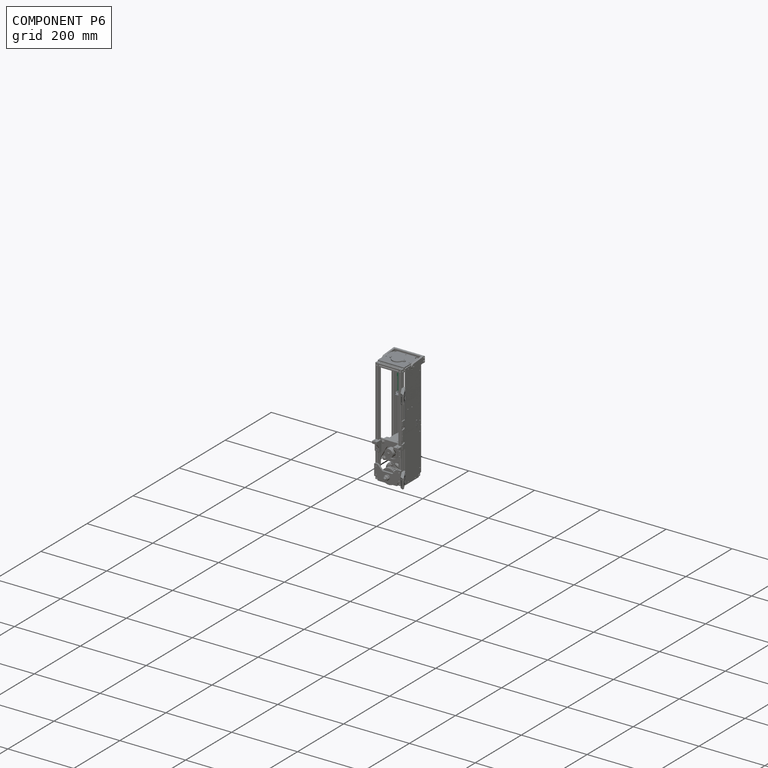
[diagram: component P6 — assembled]
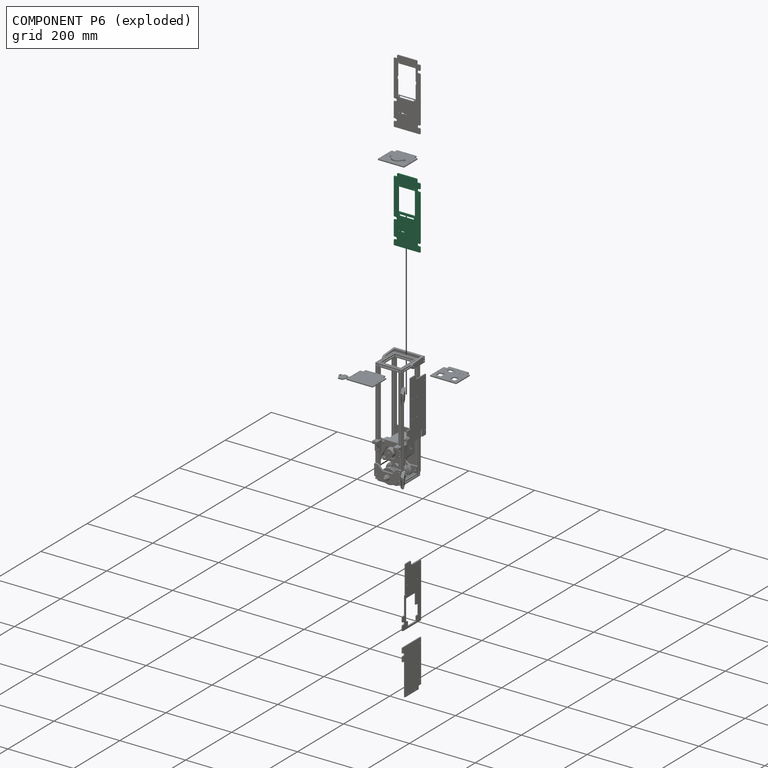
[diagram: component P6 — exploded]
COMPONENT P6 — recipe-attached ("CarterSide240*320", modeled in this document).
Held by: resting contact with P0 (derived edge); resting contact with P1 (derived edge); resting contact with P2 (derived edge); resting contact with P3 (derived edge); resting contact with P4 (derived edge); resting contact with P5 (derived edge); resting contact with P7 (derived edge); resting contact with P8 (derived edge); resting contact with P9 (derived edge).
Construction recipe (the document's own serialized feature program — sketch geometry with constraints, then the solid features built on it; lengths are millimeters unless a unit is written):

FEATURE [Sketcher::SketchObject] Sketch183
  ArcFitTolerance = 0
  AttachmentSupport = -> [XZ_Plane106]
  ExternalBSplineMaxDegree = 0
  ExternalBSplineTolerance = 0
  FullyConstrained = true
  InternalTolerance = 1e-06
  InvalidShape = false
  MakeInternals = false
  MapMode = 5
  Placement = pos=(0,0,0) rot=(0,0.707107,0.707107;3.14159rad)
  Support = -> [XZ_Plane106]
  TreeRank = 115
  ValidateShape = true
  sketch-geometry (8):
    g0: LineSegment StartX=-40 StartY=310 StartZ=0 EndX=-30 EndY=310 EndZ=0
    g1: LineSegment StartX=-30 StartY=310 StartZ=0 EndX=-30 EndY=320 EndZ=0
    g2: LineSegment StartX=-30 StartY=320 StartZ=0 EndX=30 EndY=320 EndZ=0
    g3: LineSegment StartX=30 StartY=320 StartZ=0 EndX=30 EndY=310 EndZ=0
    g4: LineSegment StartX=30 StartY=310 StartZ=0 EndX=40 EndY=310 EndZ=0
    g5: LineSegment StartX=40 StartY=310 StartZ=0 EndX=40 EndY=120 EndZ=0
    g6: LineSegment StartX=40 StartY=120 StartZ=0 EndX=-40 EndY=120 EndZ=0
    g7: LineSegment StartX=-40 StartY=120 StartZ=0 EndX=-40 EndY=310 EndZ=0
  constraints (23):
    c: Horizontal(g0)
    c: Coincident(g0,g1)
    c: Vertical(g1)
    c: Coincident(g1,g2)
    c: Coincident(g2,g3)
    c: Vertical(g3)
    c: Coincident(g3,g4)
    c: Horizontal(g4)
    c: Coincident(g4,g5)
    c: Vertical(g5)
    c: Coincident(g5,g6)
    c: Horizontal(g6)
    c: Coincident(g6,g7)
    c: Coincident(g7,g0)
    c: Vertical(g7)
    c: Equal(g0,g1)
    c: Equal(g1,g3)
    c: Equal(g3,g4)
    c: DistanceY(g1,g1) = 10
    c: Symmetric(g1,g2,g-2)
    c: DistanceX(g2,g2) = 60
    c: DistanceY(g2) = 320
    c: DistanceY(g5) = 120
FEATURE [PartDesign::Pad] Pad098
  AddSubType = 0
  AlongSketchNormal = false
  AutoTaperInnerAngle = false
  CheckUpToFaceLimits = true
  ClaimChildren = false
  Direction = (0,1,2e-16)
  Fit = 0
  FitJoin = 0
  InnerFit = 0
  InnerFitJoin = 0
  InvalidShape = false
  Length = 3
  Length2 = 100
  Linearize = true
  NewSolid = false
  Profile = -> Sketch183
  Refine = true
  Suppress = false
  TaperInnerAngle = 0
  TaperInnerAngleRev = 0
  TreeRank = 116
  Type = 0
  ValidateShape = true
  _ProfileBasedVersion = 1
FEATURE [Sketcher::SketchObject] Sketch184
  ArcFitTolerance = 0
  AttachmentSupport = -> [XZ_Plane106]
  ExternalBSplineMaxDegree = 0
  ExternalBSplineTolerance = 0
  ExternalGeometry = -> [Pad098]
  FullyConstrained = true
  InternalTolerance = 1e-06
  InvalidShape = false
  MakeInternals = false
  MapMode = 5
  Placement = pos=(0,0,0) rot=(0,0.707107,0.707107;3.14159rad)
  Support = -> [XZ_Plane106]
  TreeRank = 117
  ValidateShape = true
  sketch-geometry (20):
    g0: ArcOfCircle CenterX=-40 CenterY=290 CenterZ=0 NormalX=0 NormalY=0 NormalZ=1 AngleXU=0 Radius=4 StartAngle=1.5708 EndAngle=4.71239
    g1: ArcOfCircle CenterX=-35 CenterY=290 CenterZ=0 NormalX=0 NormalY=0 NormalZ=1 AngleXU=0 Radius=4 StartAngle=4.71239 EndAngle=7.85398
    g2: LineSegment StartX=-40 StartY=286 StartZ=0 EndX=-35 EndY=286 EndZ=0
    g3: LineSegment StartX=-35 StartY=294 StartZ=0 EndX=-40 EndY=294 EndZ=0
    g4: ArcOfCircle CenterX=-40 CenterY=140 CenterZ=0 NormalX=0 NormalY=0 NormalZ=1 AngleXU=0 Radius=4 StartAngle=1.5708 EndAngle=4.71239
    g5: ArcOfCircle CenterX=-35 CenterY=140 CenterZ=0 NormalX=0 NormalY=0 NormalZ=1 AngleXU=0 Radius=4 StartAngle=4.71239 EndAngle=7.85398
    g6: LineSegment StartX=-40 StartY=136 StartZ=0 EndX=-35 EndY=136 EndZ=0
    g7: LineSegment StartX=-35 StartY=144 StartZ=0 EndX=-40 EndY=144 EndZ=0
    g8: ArcOfCircle CenterX=40 CenterY=140 CenterZ=0 NormalX=0 NormalY=0 NormalZ=1 AngleXU=0 Radius=4 StartAngle=4.71239 EndAngle=7.85398
    g9: ArcOfCircle CenterX=35 CenterY=140 CenterZ=0 NormalX=0 NormalY=0 NormalZ=1 AngleXU=0 Radius=4 StartAngle=1.5708 EndAngle=4.71239
    g10: LineSegment StartX=40 StartY=144 StartZ=0 EndX=35 EndY=144 EndZ=0
    g11: LineSegment StartX=35 StartY=136 StartZ=0 EndX=40 EndY=136 EndZ=0
    g12: ArcOfCircle [constr] CenterX=40 CenterY=290 CenterZ=0 NormalX=0 NormalY=0 NormalZ=1 AngleXU=0 Radius=4 StartAngle=4.71239 EndAngle=7.85398
    g13: ArcOfCircle [constr] CenterX=35 CenterY=290 CenterZ=0 NormalX=0 NormalY=0 NormalZ=1 AngleXU=0 Radius=4 StartAngle=1.5708 EndAngle=4.71239
    g14: LineSegment [constr] StartX=40 StartY=294 StartZ=0 EndX=35 EndY=294 EndZ=0
    g15: LineSegment [constr] StartX=35 StartY=286 StartZ=0 EndX=40 EndY=286 EndZ=0
    g16: ArcOfCircle CenterX=40 CenterY=195 CenterZ=0 NormalX=0 NormalY=0 NormalZ=1 AngleXU=0 Radius=4 StartAngle=4.71239 EndAngle=7.85398
    g17: ArcOfCircle CenterX=35 CenterY=195 CenterZ=0 NormalX=0 NormalY=0 NormalZ=1 AngleXU=0 Radius=4 StartAngle=1.5708 EndAngle=4.71239
    g18: LineSegment StartX=40 StartY=199 StartZ=0 EndX=35 EndY=199 EndZ=0
    g19: LineSegment StartX=35 StartY=191 StartZ=0 EndX=40 EndY=191 EndZ=0
  constraints (50):
    c: Tangent(g0,g2) = -1.5708
    c: Tangent(g2,g1) = -1.5708
    c: Tangent(g1,g3) = -1.5708
    c: Tangent(g3,g0) = -1.5708
    c: Equal(g0,g1)
    c: Tangent(g4,g6) = -1.5708
    c: Tangent(g6,g5) = -1.5708
    c: Tangent(g5,g7) = -1.5708
    c: Tangent(g7,g4) = -1.5708
    c: Equal(g4,g5)
    c: Tangent(g8,g10) = -1.5708
    c: Tangent(g10,g9) = -1.5708
    c: Tangent(g9,g11) = -1.5708
    c: Tangent(g11,g8) = -1.5708
    c: Equal(g8,g9)
    c: Tangent(g12,g14) = -1.5708
    c: Tangent(g14,g13) = -1.5708
    c: Tangent(g13,g15) = -1.5708
    c: Tangent(g15,g12) = -1.5708
    c: Equal(g12,g13)
    c: Horizontal(g0,g1)
    c: Horizontal(g13,g12)
    c: Horizontal(g13,g1)
    c: Horizontal(g8,g9)
    c: Horizontal(g9,g5)
    c: Horizontal(g5,g4)
    c: Equal(g9,g5)
    c: Equal(g5,g1)
    c: Equal(g1,g13)
    c: Equal(g15,g2)
    c: Equal(g2,g7)
    c: Equal(g7,g10)
    c: PointOnObject(g12,g-4)
    c: PointOnObject(g0,g-3)
    c: PointOnObject(g4,g-3)
    c: PointOnObject(g8,g-4)
    c: DistanceX(g13,g12) = 5
    c: Radius(g13) = 4
    c: DistanceY(g12,g-4) = 20
    c: DistanceY(g-4,g8) = 20
    c: Tangent(g16,g18) = -1.5708
    c: Tangent(g18,g17) = -1.5708
    c: Tangent(g17,g19) = -1.5708
    c: Tangent(g19,g16) = -1.5708
    c: Equal(g16,g17)
    c: PointOnObject(g16,g-4)
    c: Horizontal(g16,g17)
    c: Equal(g16,g12)
    c: Equal(g18,g15)
    c: DistanceY(g8,g16) = 55
FEATURE [PartDesign::Pocket] Pocket028
  AddSubType = 1
  AutoTaperInnerAngle = false
  BaseFeature = -> Pad098
  CheckUpToFaceLimits = true
  ClaimChildren = false
  Fit = 0
  FitJoin = 0
  InnerFit = 0
  InnerFitJoin = 0
  InvalidShape = false
  Length = 5
  Length2 = 100
  Linearize = true
  NewSolid = false
  Profile = -> Sketch184
  Refine = true
  Reversed = true
  Suppress = false
  TaperInnerAngle = 0
  TaperInnerAngleRev = 0
  TreeRank = 118
  Type = 1
  ValidateShape = true
  _ProfileBasedVersion = 1
  _Version = 1
FEATURE [PartDesign::Chamfer] Chamfer064
  AddSubType = 0
  Angle = 45
  Base = -> Pocket028 [Edge1,Edge8,Edge7,Edge71,Edge56,Edge54,Edge70,Edge67,Edge66,Edge65,Edge64,Edge61,Edge60,Edge57]
  BaseFeature = -> Pocket028
  ChamferType = 0
  FlipDirection = false
  InvalidShape = false
  NewSolid = false
  Refine = true
  Size = 1
  Size2 = 1
  SupportTransform = false
  Suppress = false
  TreeRank = 119
  ValidateShape = true
FEATURE [Sketcher::SketchObject] Sketch185
  ArcFitTolerance = 1e-06
  AttachmentSupport = -> [Chamfer064]
  ExternalBSplineMaxDegree = 0
  ExternalBSplineTolerance = 0
  FullyConstrained = true
  InternalTolerance = 1e-06
  InvalidShape = false
  MakeInternals = false
  MapMode = 5
  Placement = pos=(0,3,7e-16) rot=(0,0.707107,0.707107;3.14159rad)
  Support = -> [Chamfer064]
  TreeRank = 350
  ValidateShape = true
  sketch-geometry (13):
    g0: LineSegment StartX=26.02 StartY=216.1 StartZ=0 EndX=-23.98 EndY=216.1 EndZ=0
    g1: LineSegment StartX=-23.98 StartY=216.1 StartZ=0 EndX=-23.98 EndY=285.3 EndZ=0
    g2: LineSegment StartX=-23.98 StartY=285.3 StartZ=0 EndX=26.02 EndY=285.3 EndZ=0
    g3: LineSegment StartX=26.02 StartY=285.3 StartZ=0 EndX=26.02 EndY=216.1 EndZ=0
    g4: LineSegment [constr] StartX=-23.98 StartY=205.7 StartZ=0 EndX=-23.98 EndY=291.7 EndZ=0
    g5: LineSegment [constr] StartX=-23.98 StartY=291.7 StartZ=0 EndX=26.02 EndY=291.7 EndZ=0
    g6: LineSegment [constr] StartX=26.02 StartY=291.7 StartZ=0 EndX=26.02 EndY=205.7 EndZ=0
    g7: Circle CenterX=23.02 CenterY=212.62 CenterZ=0 NormalX=0 NormalY=0 NormalZ=1 AngleXU=0 Radius=1.6
    g8: Circle CenterX=-20.98 CenterY=212.62 CenterZ=0 NormalX=0 NormalY=0 NormalZ=1 AngleXU=0 Radius=1.6
    g9: LineSegment [constr] StartX=1.02 StartY=285.3 StartZ=0 EndX=1.02 EndY=216.1 EndZ=0
    g10: LineSegment [constr] StartX=-23.98 StartY=205.7 StartZ=0 EndX=26.02 EndY=205.7 EndZ=0
    g11: Circle CenterX=-20.98 CenterY=288.7 CenterZ=0 NormalX=0 NormalY=0 NormalZ=1 AngleXU=0 Radius=1.6
    g12: Circle CenterX=23.02 CenterY=288.7 CenterZ=0 NormalX=0 NormalY=0 NormalZ=1 AngleXU=0 Radius=1.6
  constraints (36):
    c: Coincident(g0,g1)
    c: Coincident(g1,g2)
    c: Coincident(g2,g3)
    c: Coincident(g3,g0)
    c: Horizontal(g0)
    c: Horizontal(g2)
    c: Vertical(g1)
    c: Vertical(g3)
    c: Coincident(g4,g5)
    c: Coincident(g5,g6)
    c: Horizontal(g5)
    c: Vertical(g4)
    c: Vertical(g6)
    c: DistanceX(g4,g6) = 50
    c: DistanceY(g3,g3) = 69.2
    c: DistanceX(g0,g0) = 50
    c: Equal(g8,g7)
    c: Diameter(g8) = 3.2
    c: PointOnObject(g9,g0)
    c: Symmetric(g1,g2,g9)
    c: Horizontal(g10)
    c: DistanceY(g10,g7) = 6.92
    c: DistanceY(g10) = 205.7
    c: DistanceX(g9) = 1.02
    c: Symmetric(g7,g8,g9)
    c: DistanceX(g7,g10) = 3
    c: DistanceY(g10,g0) = 10.4
    c: Coincident(g4,g10)
    c: Coincident(g6,g10)
    c: Equal(g8,g11)
    c: Equal(g11,g12)
    c: Symmetric(g11,g12,g9)
    c: Vertical(g12,g7)
    c: Symmetric(g6,g4,g9)
    c: DistanceY(g6,g5) = 86
    c: DistanceY(g12,g5) = 3
FEATURE [PartDesign::Pocket] Pocket029
  AddSubType = 1
  AutoTaperInnerAngle = false
  BaseFeature = -> Chamfer064
  CheckUpToFaceLimits = true
  ClaimChildren = false
  Fit = 0
  FitJoin = 0
  InnerFit = 0
  InnerFitJoin = 0
  InvalidShape = false
  Length = 5
  Length2 = 100
  Linearize = true
  NewSolid = false
  Profile = -> Sketch185
  Refine = true
  Suppress = false
  TaperInnerAngle = 0
  TaperInnerAngleRev = 0
  TreeRank = 351
  Type = 1
  ValidateShape = true
  _ProfileBasedVersion = 1
  _Version = 1
FEATURE [Sketcher::SketchObject] Sketch186
  ArcFitTolerance = 1e-06
  AttachmentSupport = -> [Pocket029]
  ExternalBSplineMaxDegree = 0
  ExternalBSplineTolerance = 0
  FullyConstrained = true
  InternalTolerance = 1e-06
  InvalidShape = false
  MakeInternals = false
  MapMode = 5
  Placement = pos=(0,3,7e-16) rot=(0,0.707107,0.707107;3.14159rad)
  Support = -> [Pocket029]
  TreeRank = 352
  ValidateShape = true
  sketch-geometry (9):
    g0: LineSegment StartX=18.62 StartY=161.87 StartZ=0 EndX=8.62 EndY=161.87 EndZ=0
    g1: LineSegment StartX=8.62 StartY=161.87 StartZ=0 EndX=8.62 EndY=164.87 EndZ=0
    g2: LineSegment StartX=8.62 StartY=164.87 StartZ=0 EndX=18.62 EndY=164.87 EndZ=0
    g3: LineSegment StartX=18.62 StartY=164.87 StartZ=0 EndX=18.62 EndY=161.87 EndZ=0
    g4: Circle CenterX=23.62 CenterY=163.37 CenterZ=0 NormalX=0 NormalY=0 NormalZ=1 AngleXU=0 Radius=1.6
    g5: Circle CenterX=3.62 CenterY=163.37 CenterZ=0 NormalX=0 NormalY=0 NormalZ=1 AngleXU=0 Radius=1.6
    g6: LineSegment [constr] StartX=23.62 StartY=163.37 StartZ=0 EndX=3.62 EndY=163.37 EndZ=0
    g7: LineSegment [constr] StartX=13.62 StartY=161.87 StartZ=0 EndX=13.62 EndY=164.87 EndZ=0
    g8: GeomPoint [constr] X=13.62 Y=163.37 Z=0
  constraints (23):
    c: Coincident(g0,g1)
    c: Coincident(g1,g2)
    c: Coincident(g2,g3)
    c: Coincident(g3,g0)
    c: Horizontal(g0)
    c: Horizontal(g2)
    c: Vertical(g1)
    c: Vertical(g3)
    c: DistanceY(g3,g3) = 3
    c: Equal(g5,g4)
    c: Diameter(g5) = 3.2
    c: Coincident(g6,g4)
    c: Coincident(g6,g5)
    c: Symmetric(g1,g0,g6)
    c: DistanceX(g5,g4) = 20
    c: DistanceX(g0,g0) = 10
    c: PointOnObject(g7,g2)
    c: Symmetric(g0,g0,g7)
    c: Symmetric(g4,g5,g7)
    c: PointOnObject(g8,g6)
    c: PointOnObject(g8,g7)
    c: DistanceX(g8) = 13.62
    c: DistanceY(g8) = 163.37
FEATURE [PartDesign::Pocket] Pocket030
  AddSubType = 1
  AutoTaperInnerAngle = false
  BaseFeature = -> Pocket029
  CheckUpToFaceLimits = true
  ClaimChildren = false
  Fit = 0
  FitJoin = 0
  InnerFit = 0
  InnerFitJoin = 0
  InvalidShape = false
  Length = 5
  Length2 = 100
  Linearize = true
  NewSolid = false
  Profile = -> Sketch186
  Refine = true
  Suppress = false
  TaperInnerAngle = 0
  TaperInnerAngleRev = 0
  TreeRank = 353
  Type = 1
  ValidateShape = true
  _ProfileBasedVersion = 1
  _Version = 1
FEATURE [Sketcher::SketchObject] Sketch187
  ArcFitTolerance = 1e-06
  AttachmentSupport = -> [XZ_Plane106]
  ExternalBSplineMaxDegree = 5
  ExternalBSplineTolerance = 0.0001
  FullyConstrained = true
  InternalTolerance = 1e-06
  InvalidShape = false
  MakeInternals = false
  MapMode = 5
  Placement = pos=(0,0,0) rot=(1,0,0;1.5708rad)
  Support = -> [XZ_Plane106]
  TreeRank = 380
  ValidateShape = true
  sketch-geometry (4):
    g0: ArcOfCircle CenterX=-21.0199 CenterY=207.197 CenterZ=0 NormalX=0 NormalY=0 NormalZ=1 AngleXU=0 Radius=2.5 StartAngle=1.5708 EndAngle=4.71239
    g1: ArcOfCircle CenterX=18.9801 CenterY=207.197 CenterZ=0 NormalX=0 NormalY=0 NormalZ=1 AngleXU=0 Radius=2.5 StartAngle=4.71239 EndAngle=7.85398
    g2: LineSegment StartX=-21.0199 StartY=204.697 StartZ=0 EndX=18.9801 EndY=204.697 EndZ=0
    g3: LineSegment StartX=18.9801 StartY=209.697 StartZ=0 EndX=-21.0199 EndY=209.697 EndZ=0
  constraints (10):
    c: Tangent(g0,g2) = -1.5708
    c: Tangent(g2,g1) = -1.5708
    c: Tangent(g1,g3) = -1.5708
    c: Tangent(g3,g0) = -1.5708
    c: Equal(g0,g1)
    c: Horizontal(g1,g0)
    c: DistanceY(g1,g1) = 5
    c: DistanceX(g3,g3) = 40
    c: DistanceX(g1) = 18.9801
    c: DistanceY(g1) = 207.197
FEATURE [PartDesign::Pocket] Pocket031
  AddSubType = 1
  AutoTaperInnerAngle = true
  BaseFeature = -> Pocket030
  CheckUpToFaceLimits = true
  ClaimChildren = false
  Fit = 0
  FitJoin = 0
  InnerFit = 0
  InnerFitJoin = 0
  InvalidShape = false
  Length = 5
  Length2 = 100
  Linearize = true
  NewSolid = false
  Profile = -> Sketch187
  Refine = true
  Suppress = false
  TaperInnerAngle = 0
  TaperInnerAngleRev = 0
  TreeRank = 381
  Type = 1
  ValidateShape = true
  _ProfileBasedVersion = 1
  _Version = 1
FEATURE [PartDesign::Body] Body086  label="CarterSide240*320"
  AutoGroupSolids = false
  ClaimAllChildren = false
  ExportMode = 0
  Group = -> [Sketch183,Pad098,Sketch184,Pocket028,Chamfer064,Sketch185,Pocket029,Sketch186,Pocket030,Sketch187,Pocket031]
  InvalidShape = false
  Origin = -> Origin174
  Placement = pos=(0,75,0) rot=(0,0,1;0rad)
  SingleSolid = true
  Tip = -> Pocket031
  TreeRank = 382
  ValidateShape = true
  _ExportChildren = -> [Pad098,Pocket028,Chamfer064,Pocket029,Pocket030,Pocket031]
  _GroupVersion = 1
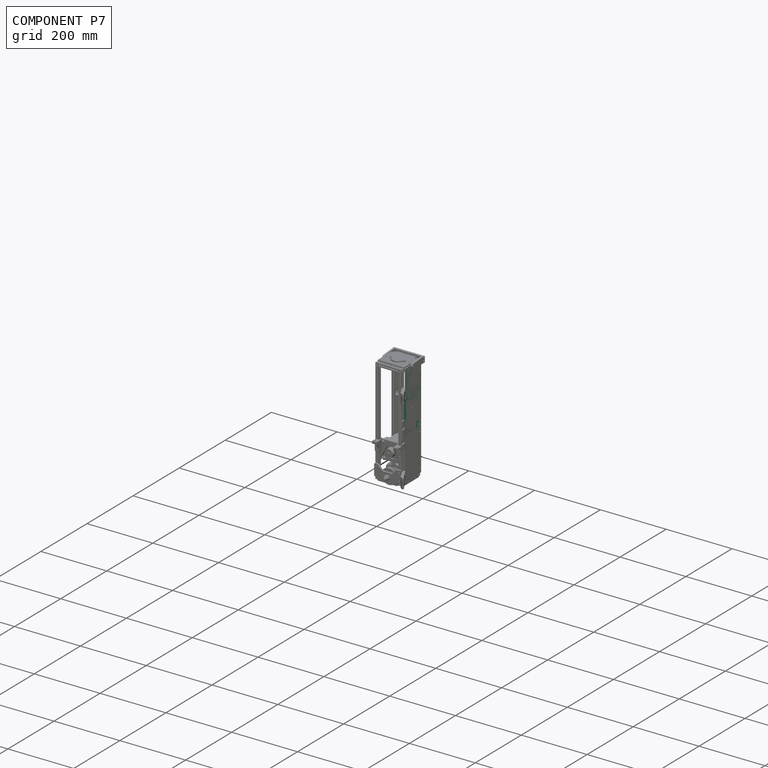
[diagram: component P7 — assembled]
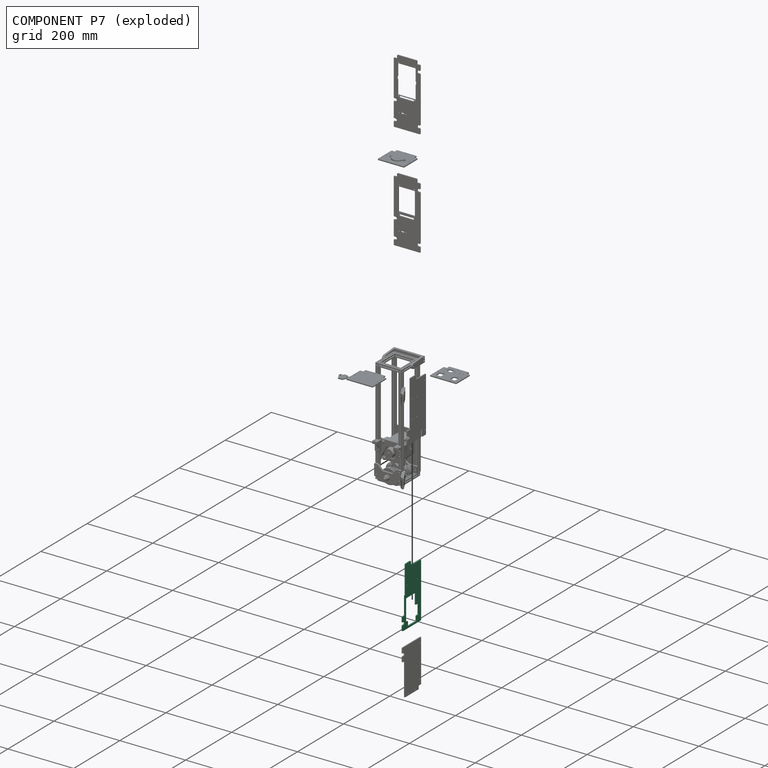
[diagram: component P7 — exploded]
COMPONENT P7 — recipe-attached ("CarterPcbTurbine", modeled in this document).
Held by: resting contact with P0 (derived edge); resting contact with P1 (derived edge); resting contact with P2 (derived edge); resting contact with P3 (derived edge); resting contact with P4 (derived edge); resting contact with P6 (derived edge); resting contact with P8 (derived edge); resting contact with P9 (derived edge).
Construction recipe (the document's own serialized feature program — sketch geometry with constraints, then the solid features built on it; lengths are millimeters unless a unit is written):

FEATURE [PartDesign::Body] Body087  label="CarterPcbTurbine"
  AutoGroupSolids = false
  BaseFeature = -> Body
  ClaimAllChildren = false
  ExportMode = 0
  Group = -> [Clone004,Sketch188,Pad099,Sketch189,Pocket032,Sketch190,Pad100,Chamfer065,Fillet066]
  InvalidShape = false
  Origin = -> Origin175
  SingleSolid = true
  Tip = -> Fillet066
  TreeRank = 405
  ValidateShape = true
  _ExportChildren = -> [Clone004,Pad099,Pocket032,Pad100,Chamfer065,Fillet066]
  _GroupVersion = 1
FEATURE [PartDesign::FeatureBase] Clone004
  BaseFeature = -> Body
  InvalidShape = false
  NewSolid = false
  Suppress = false
  TreeRank = 404
  ValidateShape = true
FEATURE [Sketcher::SketchObject] Sketch188
  ArcFitTolerance = 1e-06
  AttachmentSupport = -> [Clone004]
  ExternalBSplineMaxDegree = 5
  ExternalBSplineTolerance = 0.0001
  ExternalGeometry = -> [Clone004]
  FullyConstrained = false
  InternalTolerance = 1e-06
  InvalidShape = false
  MakeInternals = true
  MapMode = 5
  Placement = pos=(43,-2.92e-14,-4.7e-15) rot=(0.57735,0.57735,0.57735;2.0944rad)
  Support = -> [Clone004]
  TreeRank = 406
  ValidateShape = true
  sketch-geometry (8):
    g0: LineSegment StartX=49.4599 StartY=191.343 StartZ=0 EndX=12.3407 EndY=191.343 EndZ=0
    g1: LineSegment StartX=12.3407 StartY=191.343 StartZ=0 EndX=12.3407 EndY=270.298 EndZ=0
    g2: LineSegment StartX=12.3407 StartY=270.298 StartZ=0 EndX=49.4599 EndY=270.298 EndZ=0
    g3: LineSegment StartX=49.4599 StartY=270.298 StartZ=0 EndX=49.4599 EndY=191.343 EndZ=0
    g4: LineSegment StartX=53 StartY=140 StartZ=0 EndX=60 EndY=140 EndZ=0
    g5: LineSegment StartX=60 StartY=140 StartZ=0 EndX=60 EndY=170 EndZ=0
    g6: LineSegment StartX=60 StartY=170 StartZ=0 EndX=53 EndY=170 EndZ=0
    g7: LineSegment StartX=53 StartY=170 StartZ=0 EndX=53 EndY=140 EndZ=0
  constraints (18):
    c: Coincident(g0,g1)
    c: Coincident(g1,g2)
    c: Coincident(g2,g3)
    c: Coincident(g3,g0)
    c: Horizontal(g0)
    c: Horizontal(g2)
    c: Vertical(g1)
    c: Vertical(g3)
    c: Coincident(g4,g5)
    c: Coincident(g5,g6)
    c: Coincident(g6,g7)
    c: Coincident(g7,g4)
    c: Horizontal(g6)
    c: Vertical(g5)
    c: Vertical(g7)
    c: Coincident(g4,g-3)
    c: Coincident(g4,g-4)
    c: DistanceY(g7,g7) = 30
FEATURE [PartDesign::Pad] Pad099
  AddSubType = 0
  AlongSketchNormal = false
  AutoTaperInnerAngle = true
  BaseFeature = -> Clone004
  CheckUpToFaceLimits = true
  ClaimChildren = false
  Direction = (1,-6e-16,-2e-16)
  Fit = 0
  FitJoin = 0
  InnerFit = 0
  InnerFitJoin = 0
  InvalidShape = false
  Length = 3
  Length2 = 100
  Linearize = true
  NewSolid = false
  Profile = -> Sketch188
  Refine = true
  Reversed = true
  Suppress = false
  TaperInnerAngle = 0
  TaperInnerAngleRev = 0
  TreeRank = 407
  Type = 0
  ValidateShape = true
  _ProfileBasedVersion = 1
FEATURE [Sketcher::SketchObject] Sketch189
  ArcFitTolerance = 1e-06
  AttachmentSupport = -> [Pad099]
  ExternalBSplineMaxDegree = 5
  ExternalBSplineTolerance = 0.0001
  ExternalGeometry = -> [Pad099]
  FullyConstrained = true
  InternalTolerance = 1e-06
  InvalidShape = false
  MakeInternals = true
  MapMode = 5
  Placement = pos=(43,3.72e-14,4.19e-14) rot=(0.57735,0.57735,0.57735;2.0944rad)
  Support = -> [Pad099]
  TreeRank = 408
  ValidateShape = true
  sketch-geometry (24):
    g0: LineSegment [constr] StartX=14 StartY=260 StartZ=0 EndX=59 EndY=260 EndZ=0
    g1: LineSegment [constr] StartX=59 StartY=260 StartZ=0 EndX=59 EndY=150 EndZ=0
    g2: LineSegment [constr] StartX=59 StartY=150 StartZ=0 EndX=14 EndY=150 EndZ=0
    g3: LineSegment [constr] StartX=14 StartY=150 StartZ=0 EndX=14 EndY=260 EndZ=0
    g4: Circle CenterX=14 CenterY=260 CenterZ=0 NormalX=0 NormalY=0 NormalZ=1 AngleXU=0 Radius=1.6
    g5: Circle CenterX=59 CenterY=260 CenterZ=0 NormalX=0 NormalY=0 NormalZ=1 AngleXU=0 Radius=1.6
    g6: Circle CenterX=59 CenterY=150 CenterZ=0 NormalX=0 NormalY=0 NormalZ=1 AngleXU=0 Radius=1.6
    g7: Circle CenterX=14 CenterY=150 CenterZ=0 NormalX=0 NormalY=0 NormalZ=1 AngleXU=0 Radius=1.6
    g8: LineSegment [constr] StartX=9 StartY=265 StartZ=0 EndX=64 EndY=265 EndZ=0
    g9: LineSegment [constr] StartX=64 StartY=265 StartZ=0 EndX=64 EndY=145 EndZ=0
    g10: LineSegment [constr] StartX=64 StartY=145 StartZ=0 EndX=9 EndY=145 EndZ=0
    g11: LineSegment [constr] StartX=9 StartY=145 StartZ=0 EndX=9 EndY=265 EndZ=0
    g12: LineSegment [constr] StartX=9 StartY=205 StartZ=0 EndX=64 EndY=205 EndZ=0
    g13: LineSegment [constr] StartX=36.5 StartY=265 StartZ=0 EndX=36.5 EndY=145 EndZ=0
    g14: LineSegment StartX=10 StartY=225 StartZ=0 EndX=52 EndY=225 EndZ=0
    g15: LineSegment StartX=52 StartY=225 StartZ=0 EndX=52 EndY=191 EndZ=0
    g16: LineSegment StartX=52 StartY=191 StartZ=0 EndX=64 EndY=191 EndZ=0
    g17: LineSegment StartX=64 StartY=191 StartZ=0 EndX=64 EndY=160 EndZ=0
    g18: LineSegment StartX=64 StartY=160 StartZ=0 EndX=55 EndY=160 EndZ=0
    g19: LineSegment StartX=55 StartY=160 StartZ=0 EndX=55 EndY=145 EndZ=0
    g20: LineSegment StartX=55 StartY=145 StartZ=0 EndX=18 EndY=145 EndZ=0
    g21: LineSegment StartX=18 StartY=145 StartZ=0 EndX=18 EndY=160 EndZ=0
    g22: LineSegment StartX=18 StartY=160 StartZ=0 EndX=10 EndY=160 EndZ=0
    g23: LineSegment StartX=10 StartY=160 StartZ=0 EndX=10 EndY=225 EndZ=0
  constraints (65):
    c: Coincident(g0,g1)
    c: Coincident(g1,g2)
    c: Coincident(g2,g3)
    c: Coincident(g3,g0)
    c: Horizontal(g0)
    c: Horizontal(g2)
    c: Vertical(g1)
    c: Vertical(g3)
    c: DistanceX(g0,g0) = 45
    c: DistanceY(g1,g1) = 110
    c: Coincident(g4,g0)
    c: Coincident(g5,g0)
    c: Coincident(g6,g1)
    c: Coincident(g7,g2)
    c: Equal(g7,g6)
    c: Equal(g7,g5)
    c: Equal(g7,g4)
    c: Diameter(g7) = 3.2
    c: Coincident(g8,g9)
    c: Coincident(g9,g10)
    c: Coincident(g10,g11)
    c: Coincident(g11,g8)
    c: Horizontal(g8)
    c: Horizontal(g10)
    c: Vertical(g9)
    c: Vertical(g11)
    c: DistanceX(g8,g8) = 55
    c: DistanceY(g9,g9) = 120
    c: PointOnObject(g12,g11)
    c: Symmetric(g9,g8,g12)
    c: Symmetric(g5,g6,g12)
    c: PointOnObject(g13,g10)
    c: Symmetric(g8,g8,g13)
    c: Symmetric(g4,g5,g13)
    c: DistanceX(g8,g-3) = 11
    c: DistanceY(g-4,g9) = 5
    c: Horizontal(g14)
    c: Coincident(g15,g14)
    c: Vertical(g15)
    c: Coincident(g16,g15)
    c: Horizontal(g16)
    c: Coincident(g17,g16)
    c: Vertical(g17)
    c: Coincident(g18,g17)
    c: Coincident(g19,g18)
    c: Vertical(g19)
    c: Coincident(g20,g19)
    c: Coincident(g21,g20)
    c: Vertical(g21)
    c: Coincident(g22,g21)
    c: Horizontal(g22)
    c: Coincident(g23,g22)
    c: Vertical(g23)
    c: Coincident(g14,g23)
    c: Symmetric(g20,g19,g13)
    c: Horizontal(g18)
    c: PointOnObject(g18,g22)
    c: DistanceY(g9,g18) = 15
    c: DistanceX(g20,g19) = 37
    c: DistanceY(g9,g15) = 46
    c: DistanceY(g9,g14) = 80
    c: PointOnObject(g17,g9)
    c: DistanceX(g15,g16) = 12
    c: DistanceX(g12,g14) = 1
    c: PointOnObject(g19,g10)
FEATURE [PartDesign::Pocket] Pocket032
  AddSubType = 1
  AutoTaperInnerAngle = true
  BaseFeature = -> Pad099
  CheckUpToFaceLimits = true
  ClaimChildren = false
  Fit = 0
  FitJoin = 0
  InnerFit = 0
  InnerFitJoin = 0
  InvalidShape = false
  Length = 5
  Length2 = 100
  Linearize = true
  NewSolid = false
  Profile = -> Sketch189
  Refine = true
  Suppress = false
  TaperInnerAngle = 0
  TaperInnerAngleRev = 0
  TreeRank = 409
  Type = 1
  ValidateShape = true
  _ProfileBasedVersion = 1
  _Version = 1
FEATURE [Sketcher::SketchObject] Sketch190
  ArcFitTolerance = 1e-06
  AttachmentSupport = -> [Pocket032]
  ExternalBSplineMaxDegree = 5
  ExternalBSplineTolerance = 0.0001
  ExternalGeometry = -> [Pocket032]
  FullyConstrained = true
  InternalTolerance = 1e-06
  InvalidShape = false
  MakeInternals = true
  MapMode = 5
  Placement = pos=(43,3.72e-14,4.19e-14) rot=(0.57735,0.57735,0.57735;2.0944rad)
  Support = -> [Pocket032]
  TreeRank = 410
  ValidateShape = true
  sketch-geometry (4):
    g0: LineSegment StartX=8 StartY=235 StartZ=0 EndX=5 EndY=235 EndZ=0
    g1: LineSegment StartX=5 StartY=235 StartZ=0 EndX=5 EndY=180 EndZ=0
    g2: LineSegment StartX=5 StartY=180 StartZ=0 EndX=8 EndY=180 EndZ=0
    g3: LineSegment StartX=8 StartY=180 StartZ=0 EndX=8 EndY=235 EndZ=0
  constraints (12):
    c: Coincident(g0,g1)
    c: Coincident(g1,g2)
    c: Coincident(g2,g3)
    c: Coincident(g3,g0)
    c: Horizontal(g0)
    c: Horizontal(g2)
    c: Vertical(g1)
    c: Vertical(g3)
    c: PointOnObject(g0,g-3)
    c: PointOnObject(g1,g-4)
    c: DistanceX(g2,g2) = 3
    c: DistanceY(g3,g3) = 55
FEATURE [PartDesign::Pad] Pad100
  AddSubType = 0
  AlongSketchNormal = false
  AutoTaperInnerAngle = true
  BaseFeature = -> Pocket032
  CheckUpToFaceLimits = true
  ClaimChildren = false
  Direction = (1,9e-16,9e-16)
  Fit = 0
  FitJoin = 0
  InnerFit = 0
  InnerFitJoin = 0
  InvalidShape = false
  Length = 3
  Length2 = 100
  Linearize = true
  NewSolid = false
  Profile = -> Sketch190
  Refine = true
  Reversed = true
  Suppress = false
  TaperInnerAngle = 0
  TaperInnerAngleRev = 0
  TreeRank = 411
  Type = 0
  ValidateShape = true
  _ProfileBasedVersion = 1
FEATURE [PartDesign::Chamfer] Chamfer065
  AddSubType = 0
  Angle = 45
  Base = -> Pad100 [Edge4,Edge65,Edge63]
  BaseFeature = -> Pad100
  ChamferType = 0
  FlipDirection = false
  InvalidShape = false
  NewSolid = false
  Refine = true
  Size = 1
  Size2 = 1
  SupportTransform = false
  Suppress = false
  TreeRank = 412
  ValidateShape = true
FEATURE [PartDesign::Fillet] Fillet066
  AddSubType = 0
  Base = -> Chamfer065 [Edge117,Edge120,Edge113,Edge121,Edge122,Edge114,Edge115,Edge116,Edge119,Edge118]
  BaseFeature = -> Chamfer065
  InvalidShape = false
  NewSolid = false
  Radius = 2
  Refine = true
  SupportTransform = false
  Suppress = false
  TreeRank = 413
  ValidateShape = true
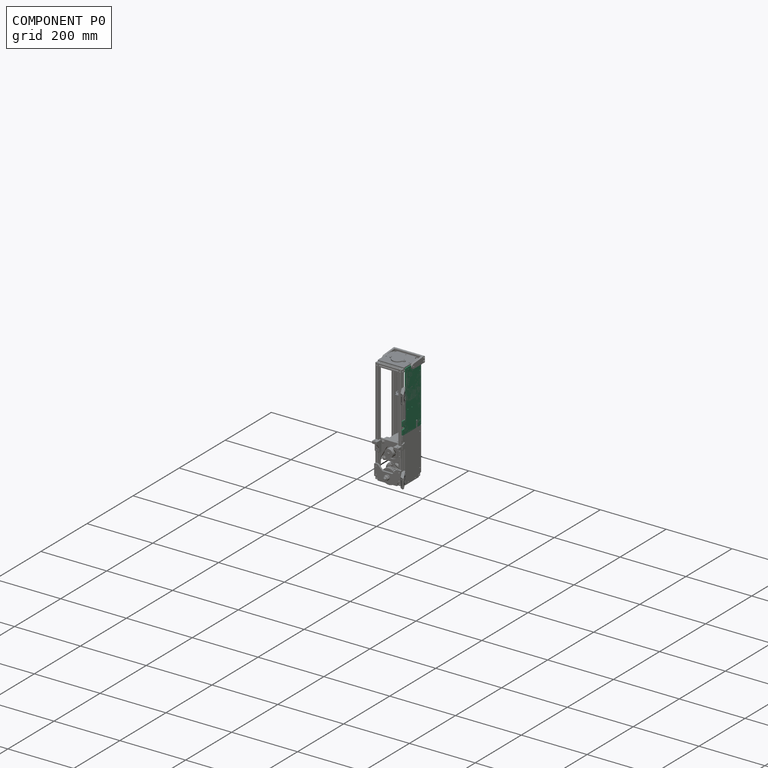
[diagram: component P0 — assembled]
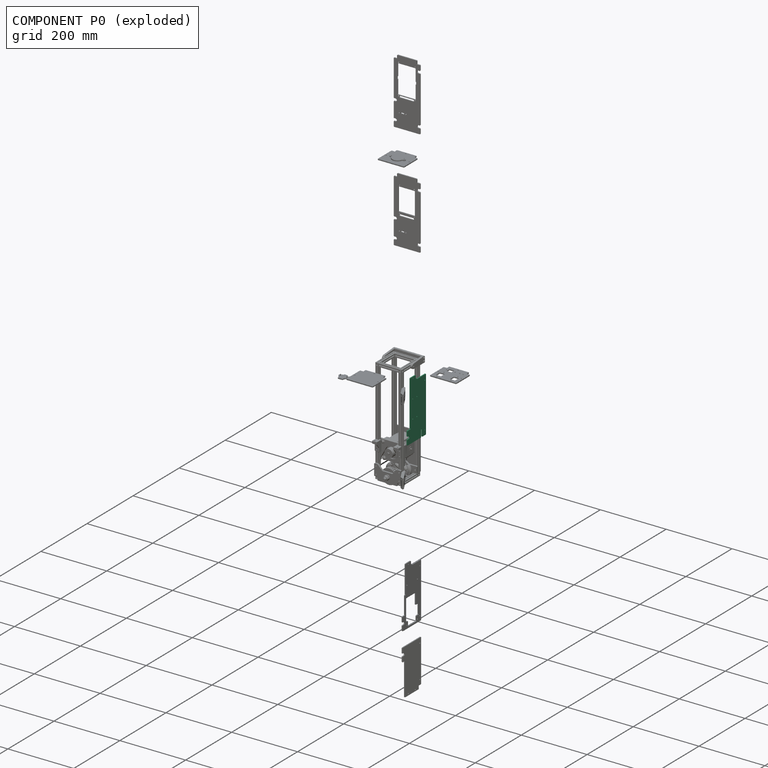
[diagram: component P0 — exploded]
COMPONENT P0 — recipe-attached ("CarterSup", modeled in this document).
Held by: resting contact with P1 (derived edge); resting contact with P2 (derived edge); resting contact with P3 (derived edge); resting contact with P4 (derived edge); resting contact with P6 (derived edge); resting contact with P7 (derived edge); resting contact with P8 (derived edge); resting contact with P9 (derived edge).
Construction recipe (the document's own serialized feature program — sketch geometry with constraints, then the solid features built on it; lengths are millimeters unless a unit is written):

FEATURE [PartDesign::Body] Body  label="CarterSup"
  AutoGroupSolids = false
  ClaimAllChildren = false
  ExportMode = 0
  Group = -> [Sketch,Export,Pad,Chamfer,Sketch158,Pocket014,Chamfer059,Sketch159,Pocket015]
  InvalidShape = false
  Origin = -> Origin157
  SingleSolid = true
  Tip = -> Pocket015
  TreeRank = 11
  ValidateShape = true
  _ExportChildren = -> [Pad,Chamfer,Pocket014,Chamfer059,Pocket015]
  _GroupVersion = 1
FEATURE [Sketcher::SketchObject] Sketch
  ArcFitTolerance = 0
  AttachmentOffset = pos=(0,0,40) rot=(0,0,1;0rad)
  AttachmentSupport = -> [YZ_Plane090]
  Exports = -> [Export]
  ExternalBSplineMaxDegree = 0
  ExternalBSplineTolerance = 0
  FullyConstrained = true
  InternalTolerance = 1e-06
  InvalidShape = false
  MakeInternals = false
  MapMode = 5
  Placement = pos=(40,-8.9e-15,8.9e-15) rot=(0.57735,0.57735,0.57735;2.0944rad)
  Support = -> [YZ_Plane090]
  TreeRank = 12
  ValidateShape = true
  expr: Constraints[16] = 3 + 5
  sketch-geometry (17):
    g0: LineSegment StartX=8 StartY=320 StartZ=0 EndX=31 EndY=320 EndZ=0
    g1: LineSegment StartX=8 StartY=320 StartZ=0 EndX=8 EndY=180 EndZ=0
    g2: LineSegment StartX=8 StartY=180 StartZ=0 EndX=-5 EndY=180 EndZ=0
    g3: LineSegment StartX=-5 StartY=180 StartZ=0 EndX=-5 EndY=164 EndZ=0
    g4: LineSegment StartX=-5 StartY=140 StartZ=0 EndX=75 EndY=140 EndZ=0
    g5: LineSegment StartX=75 StartY=140 StartZ=0 EndX=75 EndY=307 EndZ=0
    g6: LineSegment StartX=75 StartY=307 StartZ=0 EndX=39 EndY=307 EndZ=0
    g7: LineSegment StartX=31 StartY=320 StartZ=0 EndX=31 EndY=315 EndZ=0
    g8: ArcOfCircle CenterX=39 CenterY=315 CenterZ=0 NormalX=0 NormalY=0 NormalZ=1 AngleXU=0 Radius=8 StartAngle=3.14159 EndAngle=4.71239
    g9: ArcOfCircle CenterX=4.1873e-12 CenterY=160 CenterZ=0 NormalX=0 NormalY=0 NormalZ=1 AngleXU=0 Radius=4 StartAngle=4.71239 EndAngle=7.85398
    g10: LineSegment StartX=-5 StartY=156 StartZ=0 EndX=4.56684e-11 EndY=156 EndZ=0
    g11: LineSegment StartX=4.17683e-11 StartY=164 StartZ=0 EndX=-5 EndY=164 EndZ=0
    g12: Circle CenterX=19.5 CenterY=315 CenterZ=0 NormalX=0 NormalY=0 NormalZ=1 AngleXU=0 Radius=1.6
    g13: Circle CenterX=70 CenterY=292 CenterZ=0 NormalX=0 NormalY=0 NormalZ=1 AngleXU=0 Radius=1.6
    g14: Circle CenterX=70 CenterY=155 CenterZ=0 NormalX=0 NormalY=0 NormalZ=1 AngleXU=0 Radius=1.6
    g15: LineSegment [constr] StartX=19.5 StartY=315 StartZ=0 EndX=19.5 EndY=320 EndZ=0
    g16: LineSegment StartX=-5 StartY=156 StartZ=0 EndX=-5 EndY=140 EndZ=0
  constraints (48):
    c: Horizontal(g0)
    c: Coincident(g0,g1)
    c: Vertical(g1)
    c: Coincident(g1,g2)
    c: Horizontal(g2)
    c: Coincident(g2,g3)
    c: Vertical(g3)
    c: Coincident(g16,g4)
    c: Horizontal(g4)
    c: Coincident(g4,g5)
    c: Vertical(g5)
    c: Coincident(g5,g6)
    c: Horizontal(g6)
    c: Coincident(g0,g7)
    c: Vertical(g7)
    c: DistanceY(g0) = 320
    c: DistanceX(g0) = 8
    c: DistanceX(g8) = 39
    c: DistanceY(g7,g7) = 5
    c: Tangent(g8,g7) = -1.5708
    c: Tangent(g8,g6) = 1.5708
    c: DistanceX(g5) = 75
    c: Radius(g8) = 8
    c: DistanceY(g2) = 180
    c: DistanceX(g2) = -5
    c: DistanceY(g16,g3) = 40
    c: Tangent(g10,g9) = -1.5708
    c: Tangent(g9,g11) = -1.5708
    c: Horizontal(g11)
    c: PointOnObject(g9,g-2)
    c: Radius(g9) = 4
    c: Vertical(g14,g13)
    c: DistanceX(g13,g5) = 5
    c: DistanceY(g13,g5) = 15
    c: DistanceY(g4,g14) = 15
    c: Equal(g14,g13)
    c: Equal(g14,g12)
    c: Diameter(g14) = 3.2
    c: Coincident(g15,g12)
    c: Vertical(g15)
    c: Symmetric(g0,g0,g15)
    c: DistanceY(g12,g15) = 5
    c: Equal(g3,g16)
    c: Coincident(g10,g16)
    c: Vertical(g16)
    c: Horizontal(g10)
    c: DistanceX(g4,g9) = 5
    c: Coincident(g3,g11)
FEATURE [Sketcher::SketchExport] Export
  Base = -> Sketch
  BaseRefs = -> Sketch [vertex1,vertex2,edge1,vertex3,vertex4,edge2,vertex5,vertex6,edge3,vertex7,vertex8,edge4,vertex9,vertex10,edge5,vertex11,vertex12,edge6,vertex13,vertex14,edge7,vertex15,vertex16,edge8,edge9,vertex17,vertex18,vertex19]
  InvalidShape = false
  Placement = pos=(40,-8.9e-15,8.9e-15) rot=(0.57735,0.57735,0.57735;2.0944rad)
  Refs = ;g1v1.vertex1 | ;g1v2.vertex2 | ;g1.edge1 | ;g2v1.vertex3 | ;g2v2.vertex4 | ;g2.edge2 | ;g3v1.vertex5 | ;g3v2.vertex6 | ;g3.edge3 | ;g4v1.vertex7 | ;g4v2.vertex8 | ;g4.edge4 | ;g5v1.vertex9 | ;g5v2.vertex10 | ;g5.edge5 | ;g6v1.vertex11 | ;g6v2.vertex12 | ;g6.edge6 | ;g7v1.vertex13 | ;g7v2.vertex14 | ;g7.edge7 | ;g8v1.vertex15 | ;g8v2.vertex16 | ;g8.edge8 | ;g9.edge9 | ;g9v1.vertex17 | ;g9v2.vertex18 | ;g9v3.vertex19
  SyncPlacement = true
  TreeRank = 13
  ValidateShape = true
FEATURE [PartDesign::Pad] Pad
  AddSubType = 0
  AlongSketchNormal = false
  AutoTaperInnerAngle = false
  CheckUpToFaceLimits = true
  ClaimChildren = false
  Direction = (1,-2e-16,3e-16)
  Fit = 0
  FitJoin = 0
  InnerFit = 0
  InnerFitJoin = 0
  InvalidShape = false
  Length = 3
  Length2 = 100
  Linearize = true
  NewSolid = false
  Placement = pos=(0,0,0) rot=(0.57735,0.57735,0.57735;2.0944rad)
  Profile = -> Sketch
  Refine = true
  Suppress = false
  TaperInnerAngle = 0
  TaperInnerAngleRev = 0
  TreeRank = 14
  Type = 0
  ValidateShape = true
  _ProfileBasedVersion = 1
FEATURE [PartDesign::Chamfer] Chamfer
  AddSubType = 0
  Angle = 45
  Base = -> Pad [Edge11,Edge14,Edge8,Edge1,Edge35,Edge32,Edge29,Edge17,Edge20]
  BaseFeature = -> Pad
  ChamferType = 0
  FlipDirection = false
  InvalidShape = false
  NewSolid = false
  Placement = pos=(0,0,0) rot=(0.57735,0.57735,0.57735;2.0944rad)
  Refine = true
  Size = 1
  Size2 = 1
  SupportTransform = false
  Suppress = false
  TreeRank = 15
  ValidateShape = true
FEATURE [Sketcher::SketchObject] Sketch158
  ArcFitTolerance = 0
  AttachmentSupport = -> [Chamfer]
  ExternalBSplineMaxDegree = 0
  ExternalBSplineTolerance = 0
  ExternalGeometry = -> [Chamfer]
  FullyConstrained = true
  InternalTolerance = 1e-06
  InvalidShape = false
  MakeInternals = false
  MapMode = 5
  Placement = pos=(43,-1.03e-14,9.5e-15) rot=(0.57735,0.57735,0.57735;2.0944rad)
  Support = -> [Chamfer]
  TreeRank = 94
  ValidateShape = true
  sketch-geometry (4):
    g0: ArcOfCircle CenterX=56.5 CenterY=140 CenterZ=0 NormalX=0 NormalY=0 NormalZ=1 AngleXU=0 Radius=2.5 StartAngle=3.14159 EndAngle=6.28319
    g1: ArcOfCircle CenterX=56.5 CenterY=160 CenterZ=0 NormalX=0 NormalY=0 NormalZ=1 AngleXU=0 Radius=2.5 StartAngle=-3.944e-13 EndAngle=3.14159
    g2: LineSegment StartX=59 StartY=140 StartZ=0 EndX=59 EndY=160 EndZ=0
    g3: LineSegment StartX=54 StartY=160 StartZ=0 EndX=54 EndY=140 EndZ=0
  constraints (10):
    c: Tangent(g0,g2) = -1.5708
    c: Tangent(g2,g1) = -1.5708
    c: Tangent(g1,g3) = -1.5708
    c: Tangent(g3,g0) = -1.5708
    c: Equal(g0,g1)
    c: Vertical(g2)
    c: DistanceX(g0,g-3) = 16
    c: DistanceX(g1,g1) = 5
    c: DistanceY(g3,g3) = 20
    c: PointOnObject(g0,g-4)
FEATURE [PartDesign::Pocket] Pocket014
  AddSubType = 1
  AutoTaperInnerAngle = false
  BaseFeature = -> Chamfer
  CheckUpToFaceLimits = true
  ClaimChildren = false
  Fit = 0
  FitJoin = 0
  InnerFit = 0
  InnerFitJoin = 0
  InvalidShape = false
  Length = 5
  Length2 = 100
  Linearize = true
  NewSolid = false
  Placement = pos=(0,0,0) rot=(0.57735,0.57735,0.57735;2.0944rad)
  Profile = -> Sketch158
  Refine = true
  Suppress = false
  TaperInnerAngle = 0
  TaperInnerAngleRev = 0
  TreeRank = 95
  Type = 1
  ValidateShape = true
  _ProfileBasedVersion = 1
  _Version = 1
FEATURE [PartDesign::Chamfer] Chamfer059
  AddSubType = 0
  Angle = 45
  Base = -> Pocket014 [Edge82,Edge79]
  BaseFeature = -> Pocket014
  ChamferType = 0
  FlipDirection = false
  InvalidShape = false
  NewSolid = false
  Placement = pos=(0,0,0) rot=(0.57735,0.57735,0.57735;2.0944rad)
  Refine = true
  Size = 1
  Size2 = 1
  SupportTransform = false
  Suppress = false
  TreeRank = 96
  ValidateShape = true
FEATURE [Sketcher::SketchObject] Sketch159
  ArcFitTolerance = 0
  AttachmentSupport = -> [YZ_Plane090]
  ExternalBSplineMaxDegree = 0
  ExternalBSplineTolerance = 0
  ExternalGeometry = -> [Chamfer059]
  FullyConstrained = true
  InternalTolerance = 1e-06
  InvalidShape = false
  MakeInternals = false
  MapMode = 5
  Placement = pos=(0,0,0) rot=(0.57735,0.57735,0.57735;2.0944rad)
  Support = -> [YZ_Plane090]
  TreeRank = 103
  ValidateShape = true
  sketch-geometry (8):
    g0: Circle CenterX=18 CenterY=260 CenterZ=0 NormalX=0 NormalY=0 NormalZ=1 AngleXU=0 Radius=1.6
    g1: Circle CenterX=35.78 CenterY=260 CenterZ=0 NormalX=0 NormalY=0 NormalZ=1 AngleXU=0 Radius=1.6
    g2: LineSegment [constr] StartX=18 StartY=260 StartZ=0 EndX=35.78 EndY=260 EndZ=0
    g3: LineSegment [constr] StartX=35.78 StartY=260 StartZ=0 EndX=35.78 EndY=204.76 EndZ=0
    g4: LineSegment [constr] StartX=35.78 StartY=204.76 StartZ=0 EndX=18 EndY=204.76 EndZ=0
    g5: LineSegment [constr] StartX=18 StartY=204.76 StartZ=0 EndX=18 EndY=260 EndZ=0
    g6: Circle CenterX=18 CenterY=204.76 CenterZ=0 NormalX=0 NormalY=0 NormalZ=1 AngleXU=0 Radius=1.6
    g7: Circle CenterX=35.78 CenterY=204.76 CenterZ=0 NormalX=0 NormalY=0 NormalZ=1 AngleXU=0 Radius=1.6
  constraints (20):
    c: Coincident(g2,g3)
    c: Coincident(g3,g4)
    c: Coincident(g4,g5)
    c: Coincident(g5,g2)
    c: Horizontal(g2)
    c: Horizontal(g4)
    c: Vertical(g3)
    c: Vertical(g5)
    c: Coincident(g2,g0)
    c: Coincident(g1,g2)
    c: Coincident(g6,g4)
    c: Coincident(g7,g3)
    c: Equal(g7,g6)
    c: Equal(g6,g0)
    c: Equal(g0,g1)
    c: Diameter(g1) = 3.2
    c: DistanceY(g5,g5) = 55.24
    c: DistanceX(g2,g2) = 17.78
    c: DistanceX(g-3,g0) = 10
    c: DistanceY(g0,g-4) = 60
FEATURE [PartDesign::Pocket] Pocket015
  AddSubType = 1
  AutoTaperInnerAngle = false
  BaseFeature = -> Chamfer059
  CheckUpToFaceLimits = true
  ClaimChildren = false
  Fit = 0
  FitJoin = 0
  InnerFit = 0
  InnerFitJoin = 0
  InvalidShape = false
  Length = 5
  Length2 = 100
  Linearize = true
  NewSolid = false
  Placement = pos=(0,0,0) rot=(0.57735,0.57735,0.57735;2.0944rad)
  Profile = -> Sketch159
  Refine = true
  Reversed = true
  Suppress = false
  TaperInnerAngle = 0
  TaperInnerAngleRev = 0
  TreeRank = 104
  Type = 1
  ValidateShape = true
  _ProfileBasedVersion = 1
  _Version = 1
